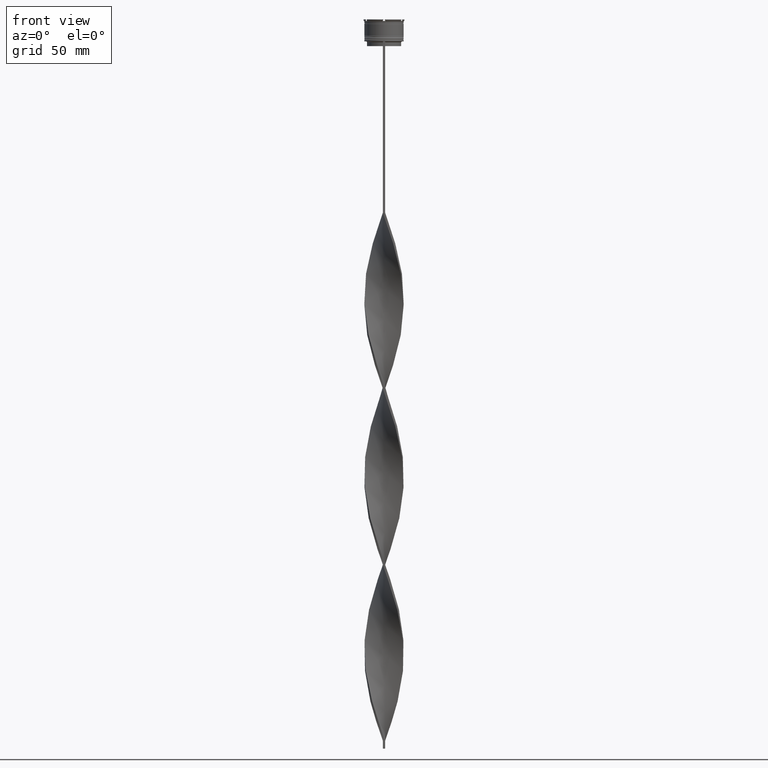
[diagram: clean part render]
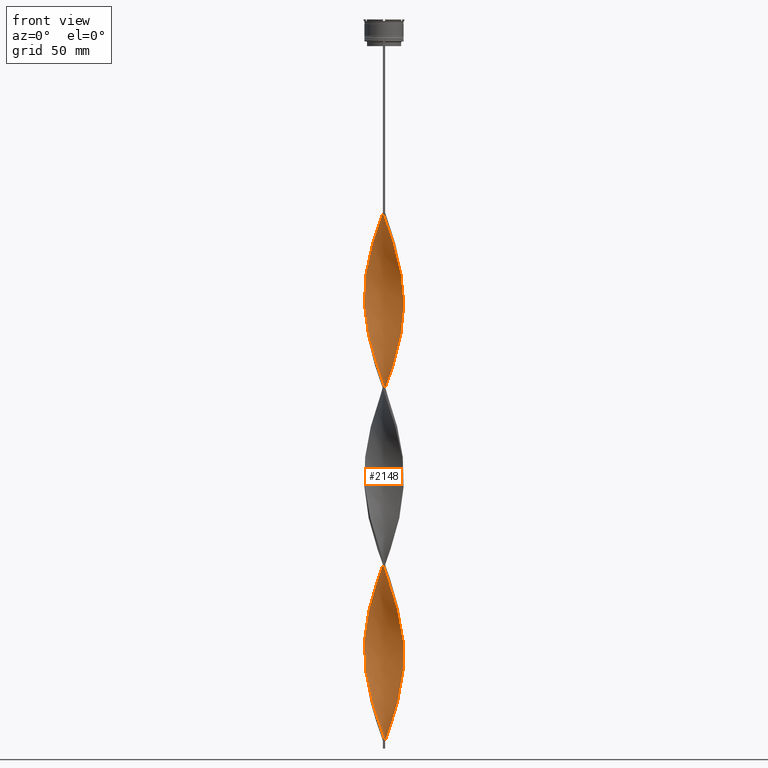
[diagram: same view with one face highlighted and labeled with its STEP entity id]
A machine part, front view. The second image highlights one B-rep face of the part: STEP entity #2148.
In plain terms, the highlighted face is a freeform B-spline surface patch.
Its self-contained STEP definition (entity closure, byte-faithful):
#1 = CARTESIAN_POINT ( 'NONE',  ( 8.112045323846697187, 9.581720387053803023, -436.0909090909090651 ) ) ;
#6 = CARTESIAN_POINT ( 'NONE',  ( -5.874911659039470102, -11.05883868218006505, -331.7272727272727479 ) ) ;
#20 = CARTESIAN_POINT ( 'NONE',  ( 5.083967906288923366, 11.47902065681780215, -446.2727272727271952 ) ) ;
#25 = CARTESIAN_POINT ( 'NONE',  ( -11.35936647350535722, 5.345974020927153347, -161.1818181818181870 ) ) ;
#38 = CARTESIAN_POINT ( 'NONE',  ( -12.26603189480669798, -2.521301559826762073, -408.0909090909091219 ) ) ;
#44 = CARTESIAN_POINT ( 'NONE',  ( 6.665855411790016838, 10.63865670754232440, -441.1818181818181301 ) ) ;
#51 = CARTESIAN_POINT ( 'NONE',  ( -12.44635894133090126, -1.644017644484961460, -181.5454545454545041 ) ) ;
#63 = CARTESIAN_POINT ( 'NONE',  ( -5.345974020927156900, -11.35936647350535367, -441.1818181818181301 ) ) ;
#71 = CARTESIAN_POINT ( 'NONE',  ( 11.35936647350535544, 5.345974020927153347, -420.8181818181818130 ) ) ;
#82 = CARTESIAN_POINT ( 'NONE',  ( -7.388950367818355680, 10.11018854729806726, -143.3636363636363740 ) ) ;
#106 = CARTESIAN_POINT ( 'NONE',  ( -11.78236275255014576, -4.241276690728743581, -189.1818181818181870 ) ) ;
#116 = CARTESIAN_POINT ( 'NONE',  ( 12.50000000000000000, -0.7500000000000005551, -179.0000000000000000 ) ) ;
#124 = CARTESIAN_POINT ( 'NONE',  ( -5.874911659039469214, 11.05883868218006505, -138.2727272727272805 ) ) ;
#132 = CARTESIAN_POINT ( 'NONE',  ( 11.68196120168289553, 4.510463666007690442, -418.2727272727273089 ) ) ;
#156 = CARTESIAN_POINT ( 'NONE',  ( -6.908166116216015062, -10.48293307345756631, -212.0909090909090935 ) ) ;
#166 = CARTESIAN_POINT ( 'NONE',  ( 3.674953311088235974, 12.00455592986042852, -334.2727272727272521 ) ) ;
#185 = CARTESIAN_POINT ( 'NONE',  ( -6.127070068571586425, -10.92114977348146354, -214.6363636363636260 ) ) ;
#189 = CARTESIAN_POINT ( 'NONE',  ( 8.329727870884727992, -9.393097386316817676, -150.9999999999999716 ) ) ;
#190 = CARTESIAN_POINT ( 'NONE',  ( 8.955724128969263731, 8.752571355081759208, -316.4545454545454390 ) ) ;
#209 = CARTESIAN_POINT ( 'NONE',  ( 0.7499999999999983347, -12.50000000000000000, -235.0000000000000000 ) ) ;
#212 = CARTESIAN_POINT ( 'NONE',  ( 5.083967906288923366, 11.47902065681780215, -222.2727272727272805 ) ) ;
#213 = CARTESIAN_POINT ( 'NONE',  ( -5.345974020927156900, -11.35936647350535367, -217.1818181818181586 ) ) ;
#230 = CARTESIAN_POINT ( 'NONE',  ( -9.393097386316817676, 8.329727870884727992, -150.9999999999999716 ) ) ;
#236 = CARTESIAN_POINT ( 'NONE',  ( 7.618946993550370195, -9.938015229887191992, -148.4545454545454390 ) ) ;
#237 = CARTESIAN_POINT ( 'NONE',  ( 8.752571355081755655, -8.955724128969267284, -260.4545454545454959 ) ) ;
#251 = CARTESIAN_POINT ( 'NONE',  ( -9.393097386316817676, 8.329727870884727992, -374.9999999999999432 ) ) ;
#253 = CARTESIAN_POINT ( 'NONE',  ( 6.127070068571584649, -10.92114977348146354, -143.3636363636363740 ) ) ;
#255 = CARTESIAN_POINT ( 'NONE',  ( 5.874911659039470990, -11.05883868218006505, -250.2727272727273089 ) ) ;
#270 = CARTESIAN_POINT ( 'NONE',  ( 9.581720387053806576, 8.112045323846695410, -313.9090909090908781 ) ) ;
#273 = CARTESIAN_POINT ( 'NONE',  ( -10.92114977348146532, -6.127070068571578432, -311.3636363636363740 ) ) ;
#274 = CARTESIAN_POINT ( 'NONE',  ( -12.47950415221662190, 1.036569397005364879, -397.9090909090909349 ) ) ;
#293 = CARTESIAN_POINT ( 'NONE',  ( 8.112045323846695410, -9.581720387053804799, -257.9090909090909349 ) ) ;
#298 = CARTESIAN_POINT ( 'NONE',  ( -9.938015229887190216, -7.618946993550371971, -316.4545454545454390 ) ) ;
#300 = CARTESIAN_POINT ( 'NONE',  ( -0.1440176444849642912, -12.55364105866909874, -456.4545454545454959 ) ) ;
#307 = CARTESIAN_POINT ( 'NONE',  ( -6.127070068571584649, 10.92114977348146354, -255.3636363636363455 ) ) ;
#316 = CARTESIAN_POINT ( 'NONE',  ( 11.35936647350535367, -5.345974020927156900, -273.1818181818181870 ) ) ;
#317 = CARTESIAN_POINT ( 'NONE',  ( 0.7500000000000013323, 12.50000000000000000, -459.0000000000000000 ) ) ;
#320 = CARTESIAN_POINT ( 'NONE',  ( 1.036569397005364879, -12.47950415221662190, -352.0909090909091219 ) ) ;
#321 = CARTESIAN_POINT ( 'NONE',  ( -10.63865670754232617, -6.665855411790015950, -420.8181818181818130 ) ) ;
#328 = CARTESIAN_POINT ( 'NONE',  ( -4.241276690728745358, -11.78236275255014576, -336.8181818181818130 ) ) ;
#334 = CARTESIAN_POINT ( 'NONE',  ( 2.521301559826761185, -12.26603189480669798, -240.0909090909090651 ) ) ;
#340 = CARTESIAN_POINT ( 'NONE',  ( -8.329727870884724439, 9.393097386316817676, -262.9999999999999432 ) ) ;
#344 = CARTESIAN_POINT ( 'NONE',  ( -10.63865670754232440, 6.665855411790017726, -273.1818181818181870 ) ) ;
#354 = CARTESIAN_POINT ( 'NONE',  ( -9.393097386316817676, -8.329727870884724439, -319.0000000000000000 ) ) ;
#362 = CARTESIAN_POINT ( 'NONE',  ( -12.20496158781229035, -2.802037230306993809, -301.1818181818182438 ) ) ;
#381 = CARTESIAN_POINT ( 'NONE',  ( -5.083967906288929584, -11.47902065681779682, -334.2727272727272521 ) ) ;
#401 = CARTESIAN_POINT ( 'NONE',  ( 5.083967906288923366, 11.47902065681780215, -446.2727272727271952 ) ) ;
#432 = CARTESIAN_POINT ( 'NONE',  ( 8.752571355081759208, 8.955724128969263731, -433.5454545454545610 ) ) ;
#452 = CARTESIAN_POINT ( 'NONE',  ( 12.47950415221662368, 1.036569397005363324, -408.0909090909091219 ) ) ;
#461 = CARTESIAN_POINT ( 'NONE',  ( -5.874911659039469214, 11.05883868218006505, -138.2727272727272805 ) ) ;
#472 = CARTESIAN_POINT ( 'NONE',  ( 12.26603189480669620, -2.521301559826762961, -173.9090909090909065 ) ) ;
#480 = CARTESIAN_POINT ( 'NONE',  ( 1.644017644484963681, 12.44635894133090126, -456.4545454545454390 ) ) ;
#487 = CARTESIAN_POINT ( 'NONE',  ( 11.47902065681779860, -5.083967906288926031, -390.2727272727272521 ) ) ;
#496 = FACE_OUTER_BOUND ( 'NONE', #3866, .T. ) ;
#502 = CARTESIAN_POINT ( 'NONE',  ( -1.644017644484962792, 12.44635894133090126, -125.5454545454545467 ) ) ;
#509 = CARTESIAN_POINT ( 'NONE',  ( 12.40536724576414862, 1.929121149525767409, -186.6363636363636260 ) ) ;
#510 = CARTESIAN_POINT ( 'NONE',  ( -8.112045323846697187, 9.581720387053804799, -145.9090909090909065 ) ) ;
#523 = CARTESIAN_POINT ( 'NONE',  ( 12.44635894133090126, -1.644017644484962792, -176.4545454545454390 ) ) ;
#529 = CARTESIAN_POINT ( 'NONE',  ( -8.329727870884727992, -9.393097386316815900, -207.0000000000000284 ) ) ;
#533 = CARTESIAN_POINT ( 'NONE',  ( 5.874911659039468326, 11.05883868218006505, -219.7272727272727195 ) ) ;
#535 = CARTESIAN_POINT ( 'NONE',  ( 12.00455592986042852, -3.674953311088235086, -278.2727272727271952 ) ) ;
#552 = CARTESIAN_POINT ( 'NONE',  ( -1.929121149525766521, -12.40536724576414862, -227.3636363636363455 ) ) ;
#557 = CARTESIAN_POINT ( 'NONE',  ( 12.47950415221662368, 1.036569397005363324, -184.0909090909090935 ) ) ;
#559 = CARTESIAN_POINT ( 'NONE',  ( 10.92114977348146532, -6.127070068571582873, -270.6363636363636829 ) ) ;
#575 = CARTESIAN_POINT ( 'NONE',  ( -6.665855411790014173, 10.63865670754232795, -140.8181818181818130 ) ) ;
#579 = CARTESIAN_POINT ( 'NONE',  ( -0.7499999999999997780, -12.50000000000000000, -123.0000000000000000 ) ) ;
#581 = CARTESIAN_POINT ( 'NONE',  ( 11.68196120168289553, -4.510463666007691330, -275.7272727272726911 ) ) ;
#598 = CARTESIAN_POINT ( 'NONE',  ( 11.05883868218006683, 5.874911659039464773, -306.2727272727272521 ) ) ;
#603 = CARTESIAN_POINT ( 'NONE',  ( 12.40536724576414684, -1.929121149525772516, -283.3636363636362603 ) ) ;
#616 = CARTESIAN_POINT ( 'NONE',  ( 12.20496158781229035, -2.802037230306998694, -280.8181818181818699 ) ) ;
#622 = CARTESIAN_POINT ( 'NONE',  ( -5.874911659039470102, -11.05883868218006505, -331.7272727272727479 ) ) ;
#624 = CARTESIAN_POINT ( 'NONE',  ( 6.127070068571582873, 10.92114977348146354, -326.6363636363636260 ) ) ;
#641 = CARTESIAN_POINT ( 'NONE',  ( 11.47902065681779860, 5.083967906288924254, -303.7272727272727479 ) ) ;
#644 = CARTESIAN_POINT ( 'NONE',  ( -0.1440176444849612103, 12.55364105866909874, -237.5454545454545325 ) ) ;
#645 = CARTESIAN_POINT ( 'NONE',  ( -4.510463666007690442, -11.68196120168289553, -443.7272727272727479 ) ) ;
#651 = CARTESIAN_POINT ( 'NONE',  ( -1.036569397005362436, 12.47950415221662368, -240.0909090909090651 ) ) ;
#663 = CARTESIAN_POINT ( 'NONE',  ( -12.20496158781229035, 2.802037230306999582, -392.8181818181818699 ) ) ;
#668 = CARTESIAN_POINT ( 'NONE',  ( 1.929121149525766521, -12.40536724576414862, -354.6363636363635692 ) ) ;
#670 = CARTESIAN_POINT ( 'NONE',  ( -9.581720387053804799, -8.112045323846698963, -425.9090909090908781 ) ) ;
#677 = CARTESIAN_POINT ( 'NONE',  ( 5.345974020927152459, -11.35936647350535722, -364.8181818181818130 ) ) ;
#685 = CARTESIAN_POINT ( 'NONE',  ( 9.393097386316817676, -8.329727870884727992, -262.9999999999999432 ) ) ;
#689 = CARTESIAN_POINT ( 'NONE',  ( -10.63865670754232440, 6.665855411790017726, -273.1818181818181870 ) ) ;
#690 = CARTESIAN_POINT ( 'NONE',  ( -8.752571355081757432, 8.955724128969265507, -372.4545454545454959 ) ) ;
#697 = CARTESIAN_POINT ( 'NONE',  ( -8.752571355081753879, -8.955724128969267284, -321.5454545454545610 ) ) ;
#707 = CARTESIAN_POINT ( 'NONE',  ( -10.11018854729806904, 7.388950367818353904, -270.6363636363636829 ) ) ;
#712 = CARTESIAN_POINT ( 'NONE',  ( 5.083967906288923366, 11.47902065681780215, -222.2727272727272805 ) ) ;
#720 = CARTESIAN_POINT ( 'NONE',  ( -3.674953311088228869, -12.00455592986043030, -446.2727272727271952 ) ) ;
#735 = CARTESIAN_POINT ( 'NONE',  ( -9.581720387053803023, 8.112045323846698963, -268.0909090909090082 ) ) ;
#758 = CARTESIAN_POINT ( 'NONE',  ( 10.11018854729806549, -7.388950367818356568, -382.6363636363636829 ) ) ;
#784 = CARTESIAN_POINT ( 'NONE',  ( 9.581720387053804799, -8.112045323846698963, -380.0909090909090651 ) ) ;
#793 = CARTESIAN_POINT ( 'NONE',  ( -8.955724128969265507, -8.752571355081755655, -428.4545454545454959 ) ) ;
#809 = CARTESIAN_POINT ( 'NONE',  ( -1.644017644484962792, 12.44635894133090126, -125.5454545454545467 ) ) ;
#829 = CARTESIAN_POINT ( 'NONE',  ( 4.241276690728743581, 11.78236275255014576, -448.8181818181818130 ) ) ;
#837 = CARTESIAN_POINT ( 'NONE',  ( 12.00455592986043030, 3.674953311088229757, -415.7272727272726911 ) ) ;
#848 = CARTESIAN_POINT ( 'NONE',  ( 12.55364105866909874, 0.1440176444849620985, -181.5454545454545041 ) ) ;
#854 = CARTESIAN_POINT ( 'NONE',  ( -10.11018854729806549, -7.388950367818355680, -199.3636363636363455 ) ) ;
#863 = CARTESIAN_POINT ( 'NONE',  ( 2.521301559826763850, 12.26603189480669620, -453.9090909090909349 ) ) ;
#879 = CARTESIAN_POINT ( 'NONE',  ( -7.388950367818355680, 10.11018854729806726, -143.3636363636363740 ) ) ;
#886 = CARTESIAN_POINT ( 'NONE',  ( 12.44635894133090126, -1.644017644484962792, -176.4545454545454390 ) ) ;
#887 = CARTESIAN_POINT ( 'NONE',  ( 12.47950415221662368, -1.036569397005365989, -285.9090909090908781 ) ) ;
#905 = CARTESIAN_POINT ( 'NONE',  ( -3.674953311088228869, -12.00455592986043030, -222.2727272727272805 ) ) ;
#912 = CARTESIAN_POINT ( 'NONE',  ( -8.329727870884727992, -9.393097386316815900, -207.0000000000000284 ) ) ;
#918 = EDGE_CURVE ( 'NONE', #2816, #1097, #3297, .T. ) ;
#927 = CARTESIAN_POINT ( 'NONE',  ( -2.521301559826763405, 12.26603189480669620, -128.0909090909090935 ) ) ;
#933 = CARTESIAN_POINT ( 'NONE',  ( 1.036569397005367099, 12.47950415221662368, -341.9090909090909349 ) ) ;
#934 = CARTESIAN_POINT ( 'NONE',  ( -0.7499999999999997780, 12.50000000000000000, -123.0000000000000000 ) ) ;
#945 = CARTESIAN_POINT ( 'NONE',  ( -12.44635894133090126, -1.644017644484961460, -181.5454545454545041 ) ) ;
#948 = CARTESIAN_POINT ( 'NONE',  ( 12.20496158781229035, 2.802037230306998694, -189.1818181818181870 ) ) ;
#949 = CARTESIAN_POINT ( 'NONE',  ( 2.521301559826761185, -12.26603189480669798, -240.0909090909090651 ) ) ;
#967 = CARTESIAN_POINT ( 'NONE',  ( 9.938015229887190216, -7.618946993550371971, -265.5454545454545041 ) ) ;
#973 = CARTESIAN_POINT ( 'NONE',  ( -12.26603189480669442, 2.521301559826764738, -285.9090909090908781 ) ) ;
#974 = CARTESIAN_POINT ( 'NONE',  ( 12.20496158781229035, -2.802037230306998694, -280.8181818181818699 ) ) ;
#989 = CARTESIAN_POINT ( 'NONE',  ( -5.874911659039469214, 11.05883868218006505, -362.2727272727273089 ) ) ;
#994 = CARTESIAN_POINT ( 'NONE',  ( -6.127070068571584649, 10.92114977348146354, -255.3636363636363455 ) ) ;
#996 = CARTESIAN_POINT ( 'NONE',  ( -1.929121149525766521, -12.40536724576414862, -451.3636363636364877 ) ) ;
#1003 = CARTESIAN_POINT ( 'NONE',  ( -3.398585475168570458, -12.08570484828248581, -339.3636363636362603 ) ) ;
#1008 = CARTESIAN_POINT ( 'NONE',  ( 10.92114977348146532, -6.127070068571582873, -270.6363636363636829 ) ) ;
#1012 = CARTESIAN_POINT ( 'NONE',  ( -2.521301559826765626, -12.26603189480669442, -341.9090909090909349 ) ) ;
#1013 = CARTESIAN_POINT ( 'NONE',  ( -9.938015229887191992, 7.618946993550370195, -377.5454545454545610 ) ) ;
#1021 = CARTESIAN_POINT ( 'NONE',  ( 4.510463666007691330, -11.68196120168289553, -362.2727272727273089 ) ) ;
#1030 = CARTESIAN_POINT ( 'NONE',  ( 2.802037230306999582, 12.20496158781229035, -336.8181818181818130 ) ) ;
#1036 = CARTESIAN_POINT ( 'NONE',  ( 2.521301559826763850, 12.26603189480669620, -229.9090909090909065 ) ) ;
#1038 = CARTESIAN_POINT ( 'NONE',  ( -3.674953311088228869, -12.00455592986043030, -446.2727272727271952 ) ) ;
#1045 = CARTESIAN_POINT ( 'NONE',  ( -9.393097386316817676, -8.329727870884724439, -319.0000000000000000 ) ) ;
#1051 = CARTESIAN_POINT ( 'NONE',  ( -10.92114977348146354, 6.127070068571585537, -382.6363636363636829 ) ) ;
#1055 = CARTESIAN_POINT ( 'NONE',  ( 1.644017644484963681, 12.44635894133090126, -232.4545454545454390 ) ) ;
#1062 = CARTESIAN_POINT ( 'NONE',  ( 0.7500000000000013323, 12.50000000000000000, -235.0000000000000000 ) ) ;
#1070 = CARTESIAN_POINT ( 'NONE',  ( -11.47902065681779860, -5.083967906288924254, -415.7272727272726911 ) ) ;
#1075 = CARTESIAN_POINT ( 'NONE',  ( 3.398585475168563796, 12.08570484828248759, -451.3636363636364308 ) ) ;
#1082 = CARTESIAN_POINT ( 'NONE',  ( -12.50000000000000000, 0.7500000000000021094, -291.0000000000000568 ) ) ;
#1097 = VERTEX_POINT ( 'NONE', #2951 ) ;
#1100 = CARTESIAN_POINT ( 'NONE',  ( 10.92114977348146354, 6.127070068571584649, -423.3636363636363740 ) ) ;
#1108 = CARTESIAN_POINT ( 'NONE',  ( -6.665855411790015062, 10.63865670754232795, -140.8181818181818130 ) ) ;
#1120 = CARTESIAN_POINT ( 'NONE',  ( -10.11018854729806549, -7.388950367818355680, -423.3636363636363740 ) ) ;
#1135 = CARTESIAN_POINT ( 'NONE',  ( 5.874911659039468326, 11.05883868218006505, -443.7272727272727479 ) ) ;
#1152 = CARTESIAN_POINT ( 'NONE',  ( 5.874911659039468326, 11.05883868218006505, -443.7272727272727479 ) ) ;
#1161 = CARTESIAN_POINT ( 'NONE',  ( -12.47950415221662190, 1.036569397005364879, -173.9090909090909065 ) ) ;
#1188 = CARTESIAN_POINT ( 'NONE',  ( 11.35936647350535544, 5.345974020927153347, -420.8181818181818130 ) ) ;
#1203 = CARTESIAN_POINT ( 'NONE',  ( 12.40536724576414862, 1.929121149525767409, -186.6363636363636260 ) ) ;
#1219 = CARTESIAN_POINT ( 'NONE',  ( -3.398585475168563352, 12.08570484828248759, -130.6363636363636545 ) ) ;
#1232 = CARTESIAN_POINT ( 'NONE',  ( 10.48293307345756986, 6.908166116216014174, -201.9090909090908781 ) ) ;
#1239 = CARTESIAN_POINT ( 'NONE',  ( -10.92114977348146354, 6.127070068571585537, -158.6363636363636260 ) ) ;
#1244 = CARTESIAN_POINT ( 'NONE',  ( 10.48293307345756809, 6.908166116216014174, -201.9090909090909065 ) ) ;
#1245 = CARTESIAN_POINT ( 'NONE',  ( -1.644017644484962792, 12.44635894133090126, -349.5454545454545610 ) ) ;
#1254 = CARTESIAN_POINT ( 'NONE',  ( 10.92114977348146354, 6.127070068571584649, -199.3636363636363455 ) ) ;
#1262 = CARTESIAN_POINT ( 'NONE',  ( -11.68196120168289553, 4.510463666007692218, -163.7272727272727195 ) ) ;
#1269 = CARTESIAN_POINT ( 'NONE',  ( 9.938015229887190216, -7.618946993550371971, -265.5454545454545041 ) ) ;
#1291 = CARTESIAN_POINT ( 'NONE',  ( 3.398585475168563796, 12.08570484828248759, -227.3636363636363455 ) ) ;
#1292 = CARTESIAN_POINT ( 'NONE',  ( -10.63865670754232617, -6.665855411790015950, -196.8181818181817846 ) ) ;
#1306 = CARTESIAN_POINT ( 'NONE',  ( -12.55364105866909874, 0.1440176444849634030, -176.4545454545454390 ) ) ;
#1310 = CARTESIAN_POINT ( 'NONE',  ( 1.036569397005364879, -12.47950415221662190, -128.0909090909090935 ) ) ;
#1311 = CARTESIAN_POINT ( 'NONE',  ( -6.127070068571586425, -10.92114977348146354, -214.6363636363636260 ) ) ;
#1325 = CARTESIAN_POINT ( 'NONE',  ( 6.665855411790015062, -10.63865670754232795, -252.8181818181817846 ) ) ;
#1328 = CARTESIAN_POINT ( 'NONE',  ( 2.802037230306998694, -12.20496158781229035, -357.1818181818181301 ) ) ;
#1329 = CARTESIAN_POINT ( 'NONE',  ( 12.08570484828248759, 3.398585475168565129, -298.6363636363635692 ) ) ;
#1337 = CARTESIAN_POINT ( 'NONE',  ( 9.581720387053804799, -8.112045323846698963, -156.0909090909090935 ) ) ;
#1348 = CARTESIAN_POINT ( 'NONE',  ( 12.26603189480669798, 2.521301559826760297, -296.0909090909090651 ) ) ;
#1353 = CARTESIAN_POINT ( 'NONE',  ( -12.47950415221662368, -1.036569397005361548, -296.0909090909090651 ) ) ;
#1354 = CARTESIAN_POINT ( 'NONE',  ( -5.083967906288924254, 11.47902065681779860, -359.7272727272726343 ) ) ;
#1361 = CARTESIAN_POINT ( 'NONE',  ( 1.929121149525766521, -12.40536724576414862, -354.6363636363635692 ) ) ;
#1369 = CARTESIAN_POINT ( 'NONE',  ( -4.241276690728743581, 11.78236275255014576, -357.1818181818181301 ) ) ;
#1377 = CARTESIAN_POINT ( 'NONE',  ( -8.752571355081753879, -8.955724128969267284, -321.5454545454545610 ) ) ;
#1378 = CARTESIAN_POINT ( 'NONE',  ( -1.036569397005365323, -12.47950415221662190, -453.9090909090909349 ) ) ;
#1382 = VERTEX_POINT ( 'NONE', #934 ) ;
#1384 = CARTESIAN_POINT ( 'NONE',  ( 3.674953311088230645, -12.00455592986043030, -359.7272727272726343 ) ) ;
#1392 = CARTESIAN_POINT ( 'NONE',  ( 8.752571355081755655, -8.955724128969267284, -260.4545454545454959 ) ) ;
#1398 = CARTESIAN_POINT ( 'NONE',  ( -4.510463666007693107, 11.68196120168289553, -250.2727272727273089 ) ) ;
#1399 = CARTESIAN_POINT ( 'NONE',  ( -6.127070068571586425, -10.92114977348146354, -438.6363636363636829 ) ) ;
#1406 = CARTESIAN_POINT ( 'NONE',  ( -12.44635894133090126, 1.644017644484958796, -288.4545454545454390 ) ) ;
#1413 = CARTESIAN_POINT ( 'NONE',  ( -1.644017644484962792, 12.44635894133090126, -349.5454545454545610 ) ) ;
#1418 = CARTESIAN_POINT ( 'NONE',  ( -1.036569397005362436, 12.47950415221662368, -240.0909090909090651 ) ) ;
#1426 = CARTESIAN_POINT ( 'NONE',  ( -7.618946993550368418, 9.938015229887193769, -260.4545454545454959 ) ) ;
#1446 = CARTESIAN_POINT ( 'NONE',  ( 4.241276690728743581, 11.78236275255014576, -224.8181818181818130 ) ) ;
#1459 = CARTESIAN_POINT ( 'NONE',  ( 0.7500000000000013323, 12.50000000000000000, -459.0000000000000000 ) ) ;
#1465 = CARTESIAN_POINT ( 'NONE',  ( -11.68196120168289553, 4.510463666007692218, -163.7272727272727195 ) ) ;
#1494 = CARTESIAN_POINT ( 'NONE',  ( -12.50000000000000000, -0.7499999999999990008, -179.0000000000000000 ) ) ;
#1504 = CARTESIAN_POINT ( 'NONE',  ( -2.802037230306998694, -12.20496158781229035, -448.8181818181818130 ) ) ;
#1514 = CARTESIAN_POINT ( 'NONE',  ( 9.393097386316817676, 8.329727870884726215, -430.9999999999999432 ) ) ;
#1521 = CARTESIAN_POINT ( 'NONE',  ( 7.388950367818358345, 10.11018854729806549, -438.6363636363636829 ) ) ;
#1545 = CARTESIAN_POINT ( 'NONE',  ( 12.50000000000000000, -0.7500000000000005551, -403.0000000000000000 ) ) ;
#1556 = CARTESIAN_POINT ( 'NONE',  ( 12.47950415221662368, 1.036569397005363324, -184.0909090909090935 ) ) ;
#1572 = CARTESIAN_POINT ( 'NONE',  ( 1.644017644484963681, 12.44635894133090126, -456.4545454545454959 ) ) ;
#1596 = CARTESIAN_POINT ( 'NONE',  ( -9.581720387053804799, -8.112045323846698963, -201.9090909090908781 ) ) ;
#1617 = CARTESIAN_POINT ( 'NONE',  ( -5.345974020927156900, -11.35936647350535367, -217.1818181818181586 ) ) ;
#1621 = CARTESIAN_POINT ( 'NONE',  ( 12.08570484828248759, -3.398585475168562908, -171.3636363636363171 ) ) ;
#1622 = CARTESIAN_POINT ( 'NONE',  ( 9.393097386316817676, -8.329727870884727992, -262.9999999999999432 ) ) ;
#1642 = CARTESIAN_POINT ( 'NONE',  ( 6.665855411790016838, 10.63865670754232440, -217.1818181818181586 ) ) ;
#1644 = CARTESIAN_POINT ( 'NONE',  ( 4.510463666007692218, 11.68196120168289553, -331.7272727272727479 ) ) ;
#1662 = CARTESIAN_POINT ( 'NONE',  ( -12.00455592986043030, 3.674953311088231533, -166.2727272727272521 ) ) ;
#1667 = CARTESIAN_POINT ( 'NONE',  ( 10.63865670754232795, -6.665855411790015062, -161.1818181818181870 ) ) ;
#1669 = CARTESIAN_POINT ( 'NONE',  ( -4.241276690728743581, 11.78236275255014576, -357.1818181818181301 ) ) ;
#1686 = CARTESIAN_POINT ( 'NONE',  ( -11.35936647350535722, 5.345974020927153347, -385.1818181818181301 ) ) ;
#1688 = CARTESIAN_POINT ( 'NONE',  ( 8.112045323846697187, 9.581720387053803023, -212.0909090909090935 ) ) ;
#1689 = CARTESIAN_POINT ( 'NONE',  ( -1.036569397005365323, -12.47950415221662190, -229.9090909090909065 ) ) ;
#1706 = CARTESIAN_POINT ( 'NONE',  ( 12.08570484828248759, 3.398585475168565573, -298.6363636363635692 ) ) ;
#1709 = CARTESIAN_POINT ( 'NONE',  ( -9.581720387053803023, 8.112045323846697187, -268.0909090909090651 ) ) ;
#1710 = CARTESIAN_POINT ( 'NONE',  ( -8.955724128969265507, -8.752571355081755655, -428.4545454545454959 ) ) ;
#1717 = CARTESIAN_POINT ( 'NONE',  ( 4.510463666007691330, -11.68196120168289553, -138.2727272727272805 ) ) ;
#1720 = EDGE_CURVE ( 'NONE', #4511, #2816, #4297, .T. ) ;
#1729 = CARTESIAN_POINT ( 'NONE',  ( -3.398585475168563796, 12.08570484828248759, -354.6363636363635692 ) ) ;
#1735 = CARTESIAN_POINT ( 'NONE',  ( -12.55364105866909874, -0.1440176444849660120, -293.5454545454545041 ) ) ;
#1736 = CARTESIAN_POINT ( 'NONE',  ( -12.55364105866909874, 0.1440176444849634030, -400.4545454545453822 ) ) ;
#1743 = CARTESIAN_POINT ( 'NONE',  ( 3.398585475168563352, 12.08570484828248759, -227.3636363636363171 ) ) ;
#1749 = CARTESIAN_POINT ( 'NONE',  ( 8.329727870884727992, 9.393097386316814124, -319.0000000000000000 ) ) ;
#1756 = CARTESIAN_POINT ( 'NONE',  ( -8.955724128969263731, 8.752571355081759208, -265.5454545454545041 ) ) ;
#1757 = CARTESIAN_POINT ( 'NONE',  ( 0.7499999999999983347, -12.50000000000000000, -459.0000000000000000 ) ) ;
#1763 = CARTESIAN_POINT ( 'NONE',  ( 6.908166116216012398, -10.48293307345756986, -369.9090909090908781 ) ) ;
#1769 = CARTESIAN_POINT ( 'NONE',  ( -5.083967906288924254, 11.47902065681779860, -359.7272727272726911 ) ) ;
#1774 = CARTESIAN_POINT ( 'NONE',  ( 9.581720387053804799, -8.112045323846697187, -380.0909090909090651 ) ) ;
#1781 = CARTESIAN_POINT ( 'NONE',  ( 1.644017644484963681, 12.44635894133090126, -232.4545454545454390 ) ) ;
#1794 = CARTESIAN_POINT ( 'NONE',  ( -12.08570484828248581, 3.398585475168570014, -283.3636363636363171 ) ) ;
#1804 = CARTESIAN_POINT ( 'NONE',  ( 7.388950367818358345, 10.11018854729806549, -214.6363636363636260 ) ) ;
#1821 = CARTESIAN_POINT ( 'NONE',  ( -2.521301559826765626, -12.26603189480669442, -341.9090909090909349 ) ) ;
#1831 = CARTESIAN_POINT ( 'NONE',  ( -10.63865670754232617, -6.665855411790015062, -420.8181818181818130 ) ) ;
#1842 = CARTESIAN_POINT ( 'NONE',  ( -9.393097386316817676, 8.329727870884727992, -150.9999999999999432 ) ) ;
#1861 = CARTESIAN_POINT ( 'NONE',  ( 12.50000000000000000, -0.7500000000000005551, -403.0000000000000000 ) ) ;
#1871 = CARTESIAN_POINT ( 'NONE',  ( 12.08570484828248759, -3.398585475168562464, -395.3636363636362603 ) ) ;
#1900 = CARTESIAN_POINT ( 'NONE',  ( 10.63865670754232795, -6.665855411790015950, -385.1818181818180733 ) ) ;
#1907 = EDGE_CURVE ( 'NONE', #1382, #1097, #4630, .T. ) ;
#1912 = CARTESIAN_POINT ( 'NONE',  ( 2.802037230306998694, -12.20496158781229035, -133.1818181818181870 ) ) ;
#1918 = CARTESIAN_POINT ( 'NONE',  ( -12.26603189480669798, -2.521301559826762073, -184.0909090909090935 ) ) ;
#1928 = CARTESIAN_POINT ( 'NONE',  ( 11.78236275255014576, -4.241276690728745358, -392.8181818181818699 ) ) ;
#1939 = CARTESIAN_POINT ( 'NONE',  ( 12.20496158781229035, 2.802037230306998694, -189.1818181818181870 ) ) ;
#1949 = CARTESIAN_POINT ( 'NONE',  ( -7.618946993550371971, -9.938015229887190216, -209.5454545454545325 ) ) ;
#1956 = CARTESIAN_POINT ( 'NONE',  ( 8.955724128969265507, -8.752571355081757432, -153.5454545454545325 ) ) ;
#1958 = CARTESIAN_POINT ( 'NONE',  ( -10.92114977348146354, 6.127070068571585537, -158.6363636363636260 ) ) ;
#1972 = CARTESIAN_POINT ( 'NONE',  ( 6.908166116216012398, -10.48293307345756986, -145.9090909090909065 ) ) ;
#1986 = CARTESIAN_POINT ( 'NONE',  ( 9.581720387053806576, 8.112045323846697187, -313.9090909090908212 ) ) ;
#1995 = CARTESIAN_POINT ( 'NONE',  ( 1.036569397005364879, -12.47950415221662190, -128.0909090909090935 ) ) ;
#2001 = CARTESIAN_POINT ( 'NONE',  ( -1.036569397005365323, -12.47950415221662190, -229.9090909090909065 ) ) ;
#2004 = CARTESIAN_POINT ( 'NONE',  ( 8.752571355081759208, 8.955724128969263731, -209.5454545454545325 ) ) ;
#2005 = CARTESIAN_POINT ( 'NONE',  ( 12.44635894133090126, 1.644017644484965457, -293.5454545454544473 ) ) ;
#2022 = CARTESIAN_POINT ( 'NONE',  ( -4.241276690728743581, 11.78236275255014576, -133.1818181818181870 ) ) ;
#2027 = CARTESIAN_POINT ( 'NONE',  ( 0.1440176444849632920, -12.55364105866909874, -125.5454545454545467 ) ) ;
#2029 = CARTESIAN_POINT ( 'NONE',  ( -2.521301559826763405, 12.26603189480669620, -352.0909090909091219 ) ) ;
#2045 = CARTESIAN_POINT ( 'NONE',  ( 5.345974020927156900, 11.35936647350535367, -329.1818181818181301 ) ) ;
#2049 = CARTESIAN_POINT ( 'NONE',  ( 12.00455592986043030, 3.674953311088229757, -191.7272727272727479 ) ) ;
#2051 = CARTESIAN_POINT ( 'NONE',  ( 6.665855411790015950, -10.63865670754232795, -252.8181818181817562 ) ) ;
#2066 = CARTESIAN_POINT ( 'NONE',  ( 12.50000000000000000, 0.7499999999999975575, -291.0000000000000568 ) ) ;
#2069 = CARTESIAN_POINT ( 'NONE',  ( -11.05883868218006505, 5.874911659039469214, -275.7272727272726911 ) ) ;
#2070 = CARTESIAN_POINT ( 'NONE',  ( -8.112045323846697187, 9.581720387053804799, -369.9090909090908781 ) ) ;
#2078 = CARTESIAN_POINT ( 'NONE',  ( 0.7500000000000003331, 4.166666666666667851, -459.0000000000000000 ) ) ;
#2086 = CARTESIAN_POINT ( 'NONE',  ( -12.40536724576414862, 1.929121149525765411, -395.3636363636363171 ) ) ;
#2089 = CARTESIAN_POINT ( 'NONE',  ( -12.44635894133090126, 1.644017644484958796, -288.4545454545454390 ) ) ;
#2090 = CARTESIAN_POINT ( 'NONE',  ( -8.329727870884727992, -9.393097386316815900, -430.9999999999999432 ) ) ;
#2098 = CARTESIAN_POINT ( 'NONE',  ( -11.35936647350535722, -5.345974020927152459, -308.8181818181817562 ) ) ;
#2100 = CARTESIAN_POINT ( 'NONE',  ( 0.7500000000000013323, 12.50000000000000000, -459.0000000000000000 ) ) ;
#2111 = CARTESIAN_POINT ( 'NONE',  ( -2.521301559826763405, 12.26603189480669620, -352.0909090909091219 ) ) ;
#2117 = CARTESIAN_POINT ( 'NONE',  ( 4.510463666007691330, -11.68196120168289553, -362.2727272727273089 ) ) ;
#2118 = CARTESIAN_POINT ( 'NONE',  ( -12.50000000000000000, -0.7499999999999990008, -403.0000000000000000 ) ) ;
#2124 = CARTESIAN_POINT ( 'NONE',  ( 6.127070068571584649, -10.92114977348146354, -367.3636363636363740 ) ) ;
#2130 = CARTESIAN_POINT ( 'NONE',  ( 8.955724128969263731, 8.752571355081759208, -316.4545454545454390 ) ) ;
#2136 = CARTESIAN_POINT ( 'NONE',  ( -4.241276690728745358, -11.78236275255014576, -336.8181818181818130 ) ) ;
#2137 = CARTESIAN_POINT ( 'NONE',  ( -11.35936647350535722, 5.345974020927153347, -385.1818181818180733 ) ) ;
#2142 = CARTESIAN_POINT ( 'NONE',  ( -11.05883868218006505, 5.874911659039469214, -275.7272727272726911 ) ) ;
#2148 = ADVANCED_FACE ( 'NONE', ( #496 ), #2568, .T. ) ;
#2151 = CARTESIAN_POINT ( 'NONE',  ( 7.618946993550370195, -9.938015229887191992, -372.4545454545454959 ) ) ;
#2157 = CARTESIAN_POINT ( 'NONE',  ( 2.521301559826763850, 12.26603189480669620, -229.9090909090909065 ) ) ;
#2182 = CARTESIAN_POINT ( 'NONE',  ( -11.78236275255014576, 4.241276690728744470, -280.8181818181818699 ) ) ;
#2195 = CARTESIAN_POINT ( 'NONE',  ( 12.26603189480669620, -2.521301559826762961, -397.9090909090909349 ) ) ;
#2203 = CARTESIAN_POINT ( 'NONE',  ( -12.20496158781229035, 2.802037230306999582, -168.8181818181818130 ) ) ;
#2229 = CARTESIAN_POINT ( 'NONE',  ( 12.44635894133090126, -1.644017644484962792, -400.4545454545453822 ) ) ;
#2241 = CARTESIAN_POINT ( 'NONE',  ( -12.55364105866909874, 0.1440176444849634030, -400.4545454545453822 ) ) ;
#2257 = CARTESIAN_POINT ( 'NONE',  ( 11.05883868218006505, -5.874911659039470102, -387.7272727272727479 ) ) ;
#2267 = CARTESIAN_POINT ( 'NONE',  ( 11.05883868218006505, -5.874911659039470102, -163.7272727272727195 ) ) ;
#2274 = CARTESIAN_POINT ( 'NONE',  ( 9.938015229887191992, 7.618946993550368418, -428.4545454545454959 ) ) ;
#2281 = CARTESIAN_POINT ( 'NONE',  ( 8.955724128969265507, -8.752571355081757432, -377.5454545454545610 ) ) ;
#2298 = CARTESIAN_POINT ( 'NONE',  ( -11.35936647350535722, 5.345974020927153347, -161.1818181818181870 ) ) ;
#2308 = CARTESIAN_POINT ( 'NONE',  ( -5.083967906288924254, 11.47902065681779860, -135.7272727272726911 ) ) ;
#2328 = CARTESIAN_POINT ( 'NONE',  ( -8.752571355081757432, 8.955724128969265507, -148.4545454545454390 ) ) ;
#2336 = CARTESIAN_POINT ( 'NONE',  ( 12.26603189480669798, 2.521301559826760297, -296.0909090909090651 ) ) ;
#2357 = CARTESIAN_POINT ( 'NONE',  ( 6.908166116216012398, -10.48293307345756809, -145.9090909090909065 ) ) ;
#2359 = CARTESIAN_POINT ( 'NONE',  ( -6.908166116216015062, -10.48293307345756809, -212.0909090909090651 ) ) ;
#2376 = CARTESIAN_POINT ( 'NONE',  ( -3.398585475168563796, 12.08570484828248759, -130.6363636363636260 ) ) ;
#2380 = CARTESIAN_POINT ( 'NONE',  ( 1.929121149525766521, -12.40536724576414862, -130.6363636363636260 ) ) ;
#2381 = CARTESIAN_POINT ( 'NONE',  ( -3.398585475168563352, 12.08570484828248759, -354.6363636363635692 ) ) ;
#2396 = CARTESIAN_POINT ( 'NONE',  ( -12.08570484828248759, -3.398585475168564685, -186.6363636363636260 ) ) ;
#2400 = CARTESIAN_POINT ( 'NONE',  ( 4.241276690728740029, -11.78236275255014576, -245.1818181818181870 ) ) ;
#2416 = CARTESIAN_POINT ( 'NONE',  ( 5.083967906288926031, -11.47902065681779860, -247.7272727272727195 ) ) ;
#2420 = CARTESIAN_POINT ( 'NONE',  ( 8.329727870884727992, -9.393097386316817676, -374.9999999999999432 ) ) ;
#2422 = CARTESIAN_POINT ( 'NONE',  ( 10.63865670754232795, 6.665855411790015062, -308.8181818181817562 ) ) ;
#2437 = CARTESIAN_POINT ( 'NONE',  ( -8.752571355081757432, 8.955724128969265507, -372.4545454545454959 ) ) ;
#2442 = CARTESIAN_POINT ( 'NONE',  ( -7.618946993550368418, 9.938015229887193769, -260.4545454545454959 ) ) ;
#2443 = CARTESIAN_POINT ( 'NONE',  ( -11.47902065681779860, -5.083967906288924254, -415.7272727272726911 ) ) ;
#2450 = CARTESIAN_POINT ( 'NONE',  ( -12.08570484828248581, 3.398585475168569570, -283.3636363636362603 ) ) ;
#2458 = CARTESIAN_POINT ( 'NONE',  ( 3.674953311088235974, 12.00455592986042852, -334.2727272727272521 ) ) ;
#2462 = CARTESIAN_POINT ( 'NONE',  ( -10.48293307345756986, -6.908166116216012398, -313.9090909090908781 ) ) ;
#2463 = CARTESIAN_POINT ( 'NONE',  ( -6.665855411790015062, 10.63865670754232795, -364.8181818181818130 ) ) ;
#2471 = CARTESIAN_POINT ( 'NONE',  ( -5.345974020927153347, 11.35936647350535722, -252.8181818181817562 ) ) ;
#2481 = CARTESIAN_POINT ( 'NONE',  ( 1.929121149525773404, 12.40536724576414684, -339.3636363636363171 ) ) ;
#2486 = CARTESIAN_POINT ( 'NONE',  ( 0.7500000000000013323, 12.50000000000000000, -235.0000000000000000 ) ) ;
#2487 = CARTESIAN_POINT ( 'NONE',  ( -12.40536724576414862, 1.929121149525765411, -395.3636363636362603 ) ) ;
#2493 = CARTESIAN_POINT ( 'NONE',  ( -4.510463666007693107, 11.68196120168289553, -250.2727272727273089 ) ) ;
#2500 = CARTESIAN_POINT ( 'NONE',  ( 12.40536724576414684, -1.929121149525772516, -283.3636363636363171 ) ) ;
#2505 = CARTESIAN_POINT ( 'NONE',  ( -11.78236275255014576, 4.241276690728744470, -280.8181818181818699 ) ) ;
#2510 = CARTESIAN_POINT ( 'NONE',  ( -2.802037230306994697, 12.20496158781229035, -245.1818181818181870 ) ) ;
#2515 = CARTESIAN_POINT ( 'NONE',  ( -11.05883868218006505, -5.874911659039468326, -418.2727272727273089 ) ) ;
#2527 = CARTESIAN_POINT ( 'NONE',  ( -8.112045323846700740, -9.581720387053801247, -324.0909090909090082 ) ) ;
#2538 = VECTOR ( 'NONE', #3490, 1000.000000000000000 ) ;
#2553 = CARTESIAN_POINT ( 'NONE',  ( -8.752571355081757432, 8.955724128969265507, -148.4545454545454390 ) ) ;
#2563 = CARTESIAN_POINT ( 'NONE',  ( -1.929121149525766521, -12.40536724576414862, -451.3636363636364308 ) ) ;
#2568 =( BOUNDED_SURFACE ( )  B_SPLINE_SURFACE ( 1, 2, ( 
 ( #4465, #4546, #1995, #3844, #1912, #4414, #1717, #3419, #3735, #1972, #3151, #4060, #4573, #1337, #3040, #3017, #2267, #2613, #3685, #4033, #472, #523, #116, #848, #1556, #1203, #1939, #2644, #3362, #4443, #1254, #1232, #2668, #2691, #3208, #3559, #1804, #3230, #3193, #712, #1446, #1743, #2157, #1781, #1062, #3913, #651, #3930, #2510, #4636, #2493, #2471, #307, #4301, #1426, #3890, #2799, #735, #4617, #344, #2142, #4222, #2182, #2450, #4265, #1406, #1082, #3248, #3542, #2858, #362, #3576, #2876, #2098, #3173, #3600, #4281, #1045, #697, #2527, #2818, #3950, #6, #381, #328, #1003, #1821, #3868, #3521, #4595, #2839, #1361, #4244, #1384, #1021, #677, #2124, #1763, #3725, #2950, #2281, #784, #758, #1900, #2257, #487, #1928, #1871, #3619, #2229, #1545, #3672, #3702, #3269, #4049, #837, #132, #1188, #2893, #4398, #3641, #3348, #432, #2631, #1521, #3300, #1135, #401, #4019, #3003, #863, #1572, #4431 ),
 ( #4076, #809, #4349, #1219, #2658, #2308, #461, #1108, #82, #510, #2553, #1842, #4321, #4374, #1958, #25, #1465, #3973, #2203, #2580, #1161, #2602, #1494, #51, #2925, #3324, #106, #2972, #3995, #1292, #4519, #1596, #3101, #912, #4169, #2359, #1311, #213, #3775, #4477, #3753, #2729, #1689, #4192, #3475, #2747, #949, #4540, #2400, #4128, #255, #2051, #3056, #3456, #237, #1622, #1269, #2709, #559, #3817, #581, #535, #974, #603, #887, #3407, #3121, #2005, #2336, #1329, #3430, #4149, #2765, #2422, #2681, #1986, #190, #4100, #3838, #3080, #624, #3379, #1644, #166, #3795, #3030, #933, #4501, #4456, #1245, #2029, #2381, #1669, #1354, #4257, #2463, #3860, #2070, #690, #3167, #1013, #3882, #3495, #2137, #3144, #2812, #4588, #2487, #274, #1736, #2118, #2828, #4611, #3907, #2793, #2443, #3554, #321, #4237, #670, #1710, #2090, #4565, #4215, #1399, #3535, #645, #1038, #3515, #996, #1378, #300, #1757 ) ),
 .UNSPECIFIED., .F., .F., .F. ) 
 B_SPLINE_SURFACE_WITH_KNOTS ( ( 2, 2 ),
 ( 3, 2, 2, 2, 2, 2, 2, 2, 2, 2, 2, 2, 2, 2, 2, 2, 2, 2, 2, 2, 2, 2, 2, 2, 2, 2, 2, 2, 2, 2, 2, 2, 2, 2, 2, 2, 2, 2, 2, 2, 2, 2, 2, 2, 2, 2, 2, 2, 2, 2, 2, 2, 2, 2, 2, 2, 2, 2, 2, 2, 2, 2, 2, 2, 2, 2, 3 ),
 ( 0.000000000000000000, 1.000000000000000000 ),
 ( 0.000000000000000000, 0.01136363636363636395, 0.02272727272727272790, 0.03409090909090908839, 0.04545454545454545581, 0.05681818181818181629, 0.06818181818181817677, 0.07954545454545454419, 0.09090909090909091161, 0.1022727272727272790, 0.1136363636363636326, 0.1250000000000000000, 0.1363636363636363535, 0.1477272727272727348, 0.1590909090909090884, 0.1704545454545454419, 0.1818181818181818232, 0.1931818181818181768, 0.2045454545454545581, 0.2159090909090909116, 0.2272727272727272652, 0.2386363636363636465, 0.2500000000000000000, 0.2613636363636363535, 0.2727272727272727071, 0.2840909090909091161, 0.2954545454545454697, 0.3068181818181818232, 0.3181818181818181768, 0.3295454545454545303, 0.3409090909090908839, 0.3522727272727272929, 0.3636363636363636465, 0.3750000000000000000, 0.3863636363636363535, 0.3977272727272727071, 0.4090909090909091161, 0.4204545454545454697, 0.4318181818181818232, 0.4431818181818181768, 0.4545454545454545303, 0.4659090909090908839, 0.4772727272727272929, 0.4886363636363636465, 0.5000000000000000000, 0.5113636363636363535, 0.5227272727272727071, 0.5340909090909090606, 0.5454545454545454142, 0.5568181818181817677, 0.5681818181818182323, 0.5795454545454545858, 0.5909090909090909394, 0.6022727272727272929, 0.6136363636363636465, 0.6250000000000000000, 0.6363636363636363535, 0.6477272727272727071, 0.6590909090909090606, 0.6704545454545454142, 0.6818181818181817677, 0.6931818181818182323, 0.7045454545454545858, 0.7159090909090909394, 0.7272727272727272929, 0.7386363636363636465, 0.7500000000000000000 ),
 .UNSPECIFIED. ) 
 GEOMETRIC_REPRESENTATION_ITEM ( )  RATIONAL_B_SPLINE_SURFACE ( (
 ( 1.000000000000000000, 0.9974521146102535152, 1.000000000000000000, 0.9974521146102535152, 1.000000000000000000, 0.9974521146102535152, 1.000000000000000000, 0.9974521146102535152, 1.000000000000000000, 0.9974521146102535152, 1.000000000000000000, 0.9974521146102535152, 1.000000000000000000, 0.9974521146102535152, 1.000000000000000000, 0.9974521146102535152, 1.000000000000000000, 0.9974521146102535152, 1.000000000000000000, 0.9974521146102535152, 1.000000000000000000, 0.9974521146102535152, 1.000000000000000000, 0.9974521146102535152, 1.000000000000000000, 0.9974521146102535152, 1.000000000000000000, 0.9974521146102535152, 1.000000000000000000, 0.9974521146102535152, 1.000000000000000000, 0.9974521146102535152, 1.000000000000000000, 0.9974521146102535152, 1.000000000000000000, 0.9974521146102535152, 1.000000000000000000, 0.9974521146102535152, 1.000000000000000000, 0.9974521146102535152, 1.000000000000000000, 0.9974521146102535152, 1.000000000000000000, 0.9974521146102535152, 1.000000000000000000, 0.9974521146102535152, 1.000000000000000000, 0.9974521146102535152, 1.000000000000000000, 0.9974521146102535152, 1.000000000000000000, 0.9974521146102535152, 1.000000000000000000, 0.9974521146102535152, 1.000000000000000000, 0.9974521146102535152, 1.000000000000000000, 0.9974521146102535152, 1.000000000000000000, 0.9974521146102535152, 1.000000000000000000, 0.9974521146102535152, 1.000000000000000000, 0.9974521146102535152, 1.000000000000000000, 0.9974521146102535152, 1.000000000000000000, 0.9974521146102535152, 1.000000000000000000, 0.9974521146102535152, 1.000000000000000000, 0.9974521146102535152, 1.000000000000000000, 0.9974521146102535152, 1.000000000000000000, 0.9974521146102535152, 1.000000000000000000, 0.9974521146102535152, 1.000000000000000000, 0.9974521146102535152, 1.000000000000000000, 0.9974521146102535152, 1.000000000000000000, 0.9974521146102535152, 1.000000000000000000, 0.9974521146102535152, 1.000000000000000000, 0.9974521146102535152, 1.000000000000000000, 0.9974521146102535152, 1.000000000000000000, 0.9974521146102535152, 1.000000000000000000, 0.9974521146102535152, 1.000000000000000000, 0.9974521146102535152, 1.000000000000000000, 0.9974521146102535152, 1.000000000000000000, 0.9974521146102535152, 1.000000000000000000, 0.9974521146102535152, 1.000000000000000000, 0.9974521146102535152, 1.000000000000000000, 0.9974521146102535152, 1.000000000000000000, 0.9974521146102535152, 1.000000000000000000, 0.9974521146102535152, 1.000000000000000000, 0.9974521146102535152, 1.000000000000000000, 0.9974521146102535152, 1.000000000000000000, 0.9974521146102535152, 1.000000000000000000, 0.9974521146102535152, 1.000000000000000000, 0.9974521146102535152, 1.000000000000000000, 0.9974521146102535152, 1.000000000000000000, 0.9974521146102535152, 1.000000000000000000, 0.9974521146102535152, 1.000000000000000000, 0.9974521146102535152, 1.000000000000000000, 0.9974521146102535152, 1.000000000000000000, 0.9974521146102535152, 1.000000000000000000),
 ( 1.000000000000000000, 0.9974521146102535152, 1.000000000000000000, 0.9974521146102535152, 1.000000000000000000, 0.9974521146102535152, 1.000000000000000000, 0.9974521146102535152, 1.000000000000000000, 0.9974521146102535152, 1.000000000000000000, 0.9974521146102535152, 1.000000000000000000, 0.9974521146102535152, 1.000000000000000000, 0.9974521146102535152, 1.000000000000000000, 0.9974521146102535152, 1.000000000000000000, 0.9974521146102535152, 1.000000000000000000, 0.9974521146102535152, 1.000000000000000000, 0.9974521146102535152, 1.000000000000000000, 0.9974521146102535152, 1.000000000000000000, 0.9974521146102535152, 1.000000000000000000, 0.9974521146102535152, 1.000000000000000000, 0.9974521146102535152, 1.000000000000000000, 0.9974521146102535152, 1.000000000000000000, 0.9974521146102535152, 1.000000000000000000, 0.9974521146102535152, 1.000000000000000000, 0.9974521146102535152, 1.000000000000000000, 0.9974521146102535152, 1.000000000000000000, 0.9974521146102535152, 1.000000000000000000, 0.9974521146102535152, 1.000000000000000000, 0.9974521146102535152, 1.000000000000000000, 0.9974521146102535152, 1.000000000000000000, 0.9974521146102535152, 1.000000000000000000, 0.9974521146102535152, 1.000000000000000000, 0.9974521146102535152, 1.000000000000000000, 0.9974521146102535152, 1.000000000000000000, 0.9974521146102535152, 1.000000000000000000, 0.9974521146102535152, 1.000000000000000000, 0.9974521146102535152, 1.000000000000000000, 0.9974521146102535152, 1.000000000000000000, 0.9974521146102535152, 1.000000000000000000, 0.9974521146102535152, 1.000000000000000000, 0.9974521146102535152, 1.000000000000000000, 0.9974521146102535152, 1.000000000000000000, 0.9974521146102535152, 1.000000000000000000, 0.9974521146102535152, 1.000000000000000000, 0.9974521146102535152, 1.000000000000000000, 0.9974521146102535152, 1.000000000000000000, 0.9974521146102535152, 1.000000000000000000, 0.9974521146102535152, 1.000000000000000000, 0.9974521146102535152, 1.000000000000000000, 0.9974521146102535152, 1.000000000000000000, 0.9974521146102535152, 1.000000000000000000, 0.9974521146102535152, 1.000000000000000000, 0.9974521146102535152, 1.000000000000000000, 0.9974521146102535152, 1.000000000000000000, 0.9974521146102535152, 1.000000000000000000, 0.9974521146102535152, 1.000000000000000000, 0.9974521146102535152, 1.000000000000000000, 0.9974521146102535152, 1.000000000000000000, 0.9974521146102535152, 1.000000000000000000, 0.9974521146102535152, 1.000000000000000000, 0.9974521146102535152, 1.000000000000000000, 0.9974521146102535152, 1.000000000000000000, 0.9974521146102535152, 1.000000000000000000, 0.9974521146102535152, 1.000000000000000000, 0.9974521146102535152, 1.000000000000000000, 0.9974521146102535152, 1.000000000000000000, 0.9974521146102535152, 1.000000000000000000, 0.9974521146102535152, 1.000000000000000000, 0.9974521146102535152, 1.000000000000000000, 0.9974521146102535152, 1.000000000000000000, 0.9974521146102535152, 1.000000000000000000) ) ) 
 REPRESENTATION_ITEM ( '' )  SURFACE ( )  );
#2580 = CARTESIAN_POINT ( 'NONE',  ( -12.40536724576414862, 1.929121149525765411, -171.3636363636363171 ) ) ;
#2602 = CARTESIAN_POINT ( 'NONE',  ( -12.55364105866909874, 0.1440176444849634030, -176.4545454545454390 ) ) ;
#2613 = CARTESIAN_POINT ( 'NONE',  ( 11.47902065681779860, -5.083967906288926031, -166.2727272727272236 ) ) ;
#2621 = CARTESIAN_POINT ( 'NONE',  ( 12.44635894133090126, -1.644017644484962792, -400.4545454545453822 ) ) ;
#2631 = CARTESIAN_POINT ( 'NONE',  ( 8.112045323846698963, 9.581720387053803023, -436.0909090909091219 ) ) ;
#2644 = CARTESIAN_POINT ( 'NONE',  ( 12.00455592986043030, 3.674953311088229757, -191.7272727272727479 ) ) ;
#2657 = CARTESIAN_POINT ( 'NONE',  ( 9.393097386316817676, 8.329727870884726215, -207.0000000000000284 ) ) ;
#2658 = CARTESIAN_POINT ( 'NONE',  ( -4.241276690728743581, 11.78236275255014576, -133.1818181818181870 ) ) ;
#2668 = CARTESIAN_POINT ( 'NONE',  ( 9.938015229887191992, 7.618946993550368418, -204.4545454545454390 ) ) ;
#2673 = CARTESIAN_POINT ( 'NONE',  ( -11.47902065681779860, -5.083967906288924254, -191.7272727272727479 ) ) ;
#2681 = CARTESIAN_POINT ( 'NONE',  ( 10.11018854729807259, 7.388950367818349463, -311.3636363636363740 ) ) ;
#2691 = CARTESIAN_POINT ( 'NONE',  ( 9.393097386316817676, 8.329727870884726215, -207.0000000000000284 ) ) ;
#2699 = CARTESIAN_POINT ( 'NONE',  ( -11.78236275255014576, -4.241276690728743581, -189.1818181818181870 ) ) ;
#2706 = CARTESIAN_POINT ( 'NONE',  ( 11.47902065681779860, -5.083967906288926031, -166.2727272727272521 ) ) ;
#2709 = CARTESIAN_POINT ( 'NONE',  ( 10.48293307345756809, -6.908166116216015062, -268.0909090909090082 ) ) ;
#2728 = CARTESIAN_POINT ( 'NONE',  ( 12.26603189480669620, -2.521301559826762961, -173.9090909090909065 ) ) ;
#2729 = CARTESIAN_POINT ( 'NONE',  ( -1.929121149525766521, -12.40536724576414862, -227.3636363636363171 ) ) ;
#2742 = CARTESIAN_POINT ( 'NONE',  ( -12.20496158781229035, 2.802037230306999582, -168.8181818181818130 ) ) ;
#2747 = CARTESIAN_POINT ( 'NONE',  ( 1.644017644484960572, -12.44635894133090126, -237.5454545454545325 ) ) ;
#2761 = CARTESIAN_POINT ( 'NONE',  ( 12.47950415221662368, -1.036569397005365989, -285.9090909090908781 ) ) ;
#2764 = CARTESIAN_POINT ( 'NONE',  ( 6.908166116216012398, -10.48293307345756809, -369.9090909090909349 ) ) ;
#2765 = CARTESIAN_POINT ( 'NONE',  ( 11.05883868218006683, 5.874911659039464773, -306.2727272727272521 ) ) ;
#2788 = CARTESIAN_POINT ( 'NONE',  ( 6.127070068571582873, 10.92114977348146354, -326.6363636363636260 ) ) ;
#2792 = CARTESIAN_POINT ( 'NONE',  ( -5.345974020927153347, 11.35936647350535722, -252.8181818181817846 ) ) ;
#2793 = CARTESIAN_POINT ( 'NONE',  ( -11.78236275255014576, -4.241276690728743581, -413.1818181818181870 ) ) ;
#2799 = CARTESIAN_POINT ( 'NONE',  ( -8.955724128969263731, 8.752571355081759208, -265.5454545454545041 ) ) ;
#2806 = CARTESIAN_POINT ( 'NONE',  ( -10.48293307345756809, 6.908166116216014174, -380.0909090909090651 ) ) ;
#2811 = CARTESIAN_POINT ( 'NONE',  ( -1.644017644484959684, -12.44635894133090126, -344.4545454545453822 ) ) ;
#2812 = CARTESIAN_POINT ( 'NONE',  ( -12.00455592986043030, 3.674953311088231533, -390.2727272727272521 ) ) ;
#2816 = VERTEX_POINT ( 'NONE', #317 ) ;
#2818 = CARTESIAN_POINT ( 'NONE',  ( -7.388950367818353904, -10.11018854729806726, -326.6363636363636260 ) ) ;
#2823 = CARTESIAN_POINT ( 'NONE',  ( 10.48293307345756631, -6.908166116216015062, -268.0909090909090651 ) ) ;
#2827 = CARTESIAN_POINT ( 'NONE',  ( -3.398585475168570902, -12.08570484828248581, -339.3636363636363171 ) ) ;
#2828 = CARTESIAN_POINT ( 'NONE',  ( -12.44635894133090126, -1.644017644484961460, -405.5454545454545610 ) ) ;
#2839 = CARTESIAN_POINT ( 'NONE',  ( 1.036569397005364879, -12.47950415221662190, -352.0909090909091219 ) ) ;
#2846 = CARTESIAN_POINT ( 'NONE',  ( -6.665855411790014173, 10.63865670754232795, -364.8181818181818130 ) ) ;
#2852 = CARTESIAN_POINT ( 'NONE',  ( -12.20496158781229035, -2.802037230306993809, -301.1818181818182438 ) ) ;
#2858 = CARTESIAN_POINT ( 'NONE',  ( -12.40536724576414862, -1.929121149525768297, -298.6363636363635692 ) ) ;
#2871 = CARTESIAN_POINT ( 'NONE',  ( 8.752571355081759208, 8.955724128969263731, -433.5454545454545610 ) ) ;
#2876 = CARTESIAN_POINT ( 'NONE',  ( -11.68196120168289731, -4.510463666007686889, -306.2727272727272521 ) ) ;
#2888 = CARTESIAN_POINT ( 'NONE',  ( 2.521301559826763850, 12.26603189480669620, -453.9090909090909349 ) ) ;
#2893 = CARTESIAN_POINT ( 'NONE',  ( 10.92114977348146354, 6.127070068571584649, -423.3636363636363740 ) ) ;
#2925 = CARTESIAN_POINT ( 'NONE',  ( -12.26603189480669798, -2.521301559826762073, -184.0909090909090935 ) ) ;
#2933 = CARTESIAN_POINT ( 'NONE',  ( -12.44635894133090126, -1.644017644484961460, -405.5454545454545610 ) ) ;
#2950 = CARTESIAN_POINT ( 'NONE',  ( 8.329727870884727992, -9.393097386316817676, -374.9999999999999432 ) ) ;
#2951 = CARTESIAN_POINT ( 'NONE',  ( 0.7499999999999983347, -12.50000000000000000, -459.0000000000000000 ) ) ;
#2965 = CARTESIAN_POINT ( 'NONE',  ( 11.68196120168289553, 4.510463666007690442, -418.2727272727273089 ) ) ;
#2972 = CARTESIAN_POINT ( 'NONE',  ( -11.47902065681779860, -5.083967906288924254, -191.7272727272727479 ) ) ;
#3003 = CARTESIAN_POINT ( 'NONE',  ( 3.398585475168563352, 12.08570484828248759, -451.3636363636364877 ) ) ;
#3017 = CARTESIAN_POINT ( 'NONE',  ( 10.63865670754232795, -6.665855411790015950, -161.1818181818181870 ) ) ;
#3028 = CARTESIAN_POINT ( 'NONE',  ( 11.78236275255014576, -4.241276690728745358, -168.8181818181818130 ) ) ;
#3030 = CARTESIAN_POINT ( 'NONE',  ( 1.929121149525773404, 12.40536724576414684, -339.3636363636362603 ) ) ;
#3040 = CARTESIAN_POINT ( 'NONE',  ( 10.11018854729806549, -7.388950367818356568, -158.6363636363636260 ) ) ;
#3049 = CARTESIAN_POINT ( 'NONE',  ( -4.510463666007690442, -11.68196120168289553, -219.7272727272727195 ) ) ;
#3056 = CARTESIAN_POINT ( 'NONE',  ( 7.388950367818355680, -10.11018854729806726, -255.3636363636363455 ) ) ;
#3077 = CARTESIAN_POINT ( 'NONE',  ( 9.581720387053804799, -8.112045323846697187, -156.0909090909090935 ) ) ;
#3080 = CARTESIAN_POINT ( 'NONE',  ( 6.908166116216016839, 10.48293307345756631, -324.0909090909090082 ) ) ;
#3095 = CARTESIAN_POINT ( 'NONE',  ( -12.40536724576414862, 1.929121149525765411, -171.3636363636363171 ) ) ;
#3098 = ORIENTED_EDGE ( 'NONE', *, *, #3584, .T. ) ;
#3099 = CARTESIAN_POINT ( 'NONE',  ( 11.05883868218006505, -5.874911659039470102, -163.7272727272727195 ) ) ;
#3101 = CARTESIAN_POINT ( 'NONE',  ( -8.955724128969265507, -8.752571355081755655, -204.4545454545454390 ) ) ;
#3116 = CARTESIAN_POINT ( 'NONE',  ( -11.68196120168289553, 4.510463666007692218, -387.7272727272727479 ) ) ;
#3121 = CARTESIAN_POINT ( 'NONE',  ( 12.50000000000000000, 0.7499999999999975575, -291.0000000000000568 ) ) ;
#3137 = CARTESIAN_POINT ( 'NONE',  ( 0.1440176444849603499, 12.55364105866909874, -344.4545454545453822 ) ) ;
#3143 = CARTESIAN_POINT ( 'NONE',  ( 11.05883868218006505, -5.874911659039470102, -387.7272727272727479 ) ) ;
#3144 = CARTESIAN_POINT ( 'NONE',  ( -11.68196120168289553, 4.510463666007692218, -387.7272727272727479 ) ) ;
#3151 = CARTESIAN_POINT ( 'NONE',  ( 7.618946993550370195, -9.938015229887191992, -148.4545454545454390 ) ) ;
#3152 = CARTESIAN_POINT ( 'NONE',  ( 0.7499999999999992228, -4.166666666666667851, -459.0000000000000000 ) ) ;
#3162 = CARTESIAN_POINT ( 'NONE',  ( 11.68196120168289553, -4.510463666007691330, -275.7272727272726911 ) ) ;
#3165 = CARTESIAN_POINT ( 'NONE',  ( -11.35936647350535722, -5.345974020927152459, -308.8181818181817562 ) ) ;
#3167 = CARTESIAN_POINT ( 'NONE',  ( -9.393097386316817676, 8.329727870884727992, -374.9999999999999432 ) ) ;
#3173 = CARTESIAN_POINT ( 'NONE',  ( -10.92114977348146532, -6.127070068571578432, -311.3636363636363740 ) ) ;
#3179 = CARTESIAN_POINT ( 'NONE',  ( -0.7499999999999997780, -12.50000000000000000, -123.0000000000000000 ) ) ;
#3180 = CARTESIAN_POINT ( 'NONE',  ( 6.908166116216016839, 10.48293307345756453, -324.0909090909090651 ) ) ;
#3186 = CARTESIAN_POINT ( 'NONE',  ( -8.112045323846698963, -9.581720387053801247, -324.0909090909090651 ) ) ;
#3193 = CARTESIAN_POINT ( 'NONE',  ( 5.874911659039468326, 11.05883868218006505, -219.7272727272727195 ) ) ;
#3197 = CARTESIAN_POINT ( 'NONE',  ( 7.618946993550366642, 9.938015229887193769, -321.5454545454545610 ) ) ;
#3201 = CARTESIAN_POINT ( 'NONE',  ( -1.929121149525763634, 12.40536724576414862, -242.6363636363636260 ) ) ;
#3208 = CARTESIAN_POINT ( 'NONE',  ( 8.752571355081759208, 8.955724128969263731, -209.5454545454545325 ) ) ;
#3218 = CARTESIAN_POINT ( 'NONE',  ( -7.618946993550371971, -9.938015229887190216, -433.5454545454545610 ) ) ;
#3230 = CARTESIAN_POINT ( 'NONE',  ( 6.665855411790016838, 10.63865670754232440, -217.1818181818181586 ) ) ;
#3243 = CARTESIAN_POINT ( 'NONE',  ( 12.00455592986043030, 3.674953311088229757, -415.7272727272726911 ) ) ;
#3248 = CARTESIAN_POINT ( 'NONE',  ( -12.55364105866909874, -0.1440176444849660120, -293.5454545454544473 ) ) ;
#3259 = CARTESIAN_POINT ( 'NONE',  ( -0.1440176444849642912, -12.55364105866909874, -456.4545454545454390 ) ) ;
#3263 = CARTESIAN_POINT ( 'NONE',  ( 12.08570484828248759, -3.398585475168562908, -395.3636363636363171 ) ) ;
#3269 = CARTESIAN_POINT ( 'NONE',  ( 12.40536724576414862, 1.929121149525767409, -410.6363636363636260 ) ) ;
#3283 = CARTESIAN_POINT ( 'NONE',  ( -6.908166116216015062, -10.48293307345756631, -436.0909090909090651 ) ) ;
#3291 = CARTESIAN_POINT ( 'NONE',  ( 11.78236275255014576, -4.241276690728745358, -392.8181818181818699 ) ) ;
#3297 = B_SPLINE_CURVE_WITH_KNOTS ( 'NONE', 3,
 ( #2100, #2078, #3152, #4574 ),
 .UNSPECIFIED., .F., .F.,
 ( 4, 4 ),
 ( 0.000000000000000000, 1.000000000000000000 ),
 .UNSPECIFIED. ) ;
#3300 = CARTESIAN_POINT ( 'NONE',  ( 6.665855411790016838, 10.63865670754232440, -441.1818181818181301 ) ) ;
#3316 = CARTESIAN_POINT ( 'NONE',  ( 10.48293307345756809, 6.908166116216014174, -425.9090909090908212 ) ) ;
#3324 = CARTESIAN_POINT ( 'NONE',  ( -12.08570484828248759, -3.398585475168564241, -186.6363636363636260 ) ) ;
#3341 = CARTESIAN_POINT ( 'NONE',  ( -11.05883868218006505, -5.874911659039468326, -194.2727272727272521 ) ) ;
#3348 = CARTESIAN_POINT ( 'NONE',  ( 9.393097386316817676, 8.329727870884726215, -430.9999999999999432 ) ) ;
#3362 = CARTESIAN_POINT ( 'NONE',  ( 11.68196120168289553, 4.510463666007690442, -194.2727272727272521 ) ) ;
#3378 = CARTESIAN_POINT ( 'NONE',  ( 9.938015229887191992, 7.618946993550368418, -204.4545454545454390 ) ) ;
#3379 = CARTESIAN_POINT ( 'NONE',  ( 5.345974020927156900, 11.35936647350535367, -329.1818181818180733 ) ) ;
#3399 = CARTESIAN_POINT ( 'NONE',  ( -9.938015229887191992, 7.618946993550370195, -153.5454545454545325 ) ) ;
#3404 = CARTESIAN_POINT ( 'NONE',  ( 4.510463666007691330, -11.68196120168289553, -138.2727272727272805 ) ) ;
#3407 = CARTESIAN_POINT ( 'NONE',  ( 12.55364105866909874, -0.1440176444849594894, -288.4545454545454390 ) ) ;
#3419 = CARTESIAN_POINT ( 'NONE',  ( 5.345974020927152459, -11.35936647350535722, -140.8181818181818130 ) ) ;
#3426 = CARTESIAN_POINT ( 'NONE',  ( -0.1440176444849642912, -12.55364105866909874, -232.4545454545454390 ) ) ;
#3429 = CARTESIAN_POINT ( 'NONE',  ( 10.11018854729806549, -7.388950367818356568, -158.6363636363636260 ) ) ;
#3430 = CARTESIAN_POINT ( 'NONE',  ( 11.78236275255014576, 4.241276690728739140, -301.1818181818182438 ) ) ;
#3449 = CARTESIAN_POINT ( 'NONE',  ( -8.112045323846695410, 9.581720387053804799, -145.9090909090909065 ) ) ;
#3454 = CARTESIAN_POINT ( 'NONE',  ( 5.345974020927152459, -11.35936647350535722, -140.8181818181818130 ) ) ;
#3456 = CARTESIAN_POINT ( 'NONE',  ( 8.112045323846697187, -9.581720387053804799, -257.9090909090909349 ) ) ;
#3470 = CARTESIAN_POINT ( 'NONE',  ( 10.11018854729807259, 7.388950367818349463, -311.3636363636363740 ) ) ;
#3474 = CARTESIAN_POINT ( 'NONE',  ( 11.35936647350535544, 5.345974020927153347, -196.8181818181818130 ) ) ;
#3475 = CARTESIAN_POINT ( 'NONE',  ( 0.7499999999999983347, -12.50000000000000000, -235.0000000000000000 ) ) ;
#3490 = DIRECTION ( 'NONE',  ( 0.000000000000000000, 1.000000000000000000, 0.000000000000000000 ) ) ;
#3491 = CARTESIAN_POINT ( 'NONE',  ( 10.63865670754232795, 6.665855411790014173, -308.8181818181817562 ) ) ;
#3494 = CARTESIAN_POINT ( 'NONE',  ( -0.7499999999999997780, -12.50000000000000000, -347.0000000000000000 ) ) ;
#3495 = CARTESIAN_POINT ( 'NONE',  ( -10.92114977348146354, 6.127070068571585537, -382.6363636363636829 ) ) ;
#3509 = CARTESIAN_POINT ( 'NONE',  ( -12.47950415221662190, 1.036569397005364879, -397.9090909090909349 ) ) ;
#3514 = CARTESIAN_POINT ( 'NONE',  ( -12.00455592986043030, -3.674953311088230645, -303.7272727272727479 ) ) ;
#3515 = CARTESIAN_POINT ( 'NONE',  ( -2.802037230306998694, -12.20496158781229035, -448.8181818181818130 ) ) ;
#3521 = CARTESIAN_POINT ( 'NONE',  ( -0.7499999999999997780, -12.50000000000000000, -347.0000000000000000 ) ) ;
#3530 = CARTESIAN_POINT ( 'NONE',  ( -9.938015229887191992, 7.618946993550370195, -377.5454545454545610 ) ) ;
#3533 = CARTESIAN_POINT ( 'NONE',  ( 5.345974020927152459, -11.35936647350535722, -364.8181818181818130 ) ) ;
#3535 = CARTESIAN_POINT ( 'NONE',  ( -5.345974020927156900, -11.35936647350535367, -441.1818181818181301 ) ) ;
#3542 = CARTESIAN_POINT ( 'NONE',  ( -12.47950415221662368, -1.036569397005361548, -296.0909090909090651 ) ) ;
#3548 = CARTESIAN_POINT ( 'NONE',  ( 1.036569397005367099, 12.47950415221662368, -341.9090909090909349 ) ) ;
#3553 = CARTESIAN_POINT ( 'NONE',  ( 8.955724128969265507, -8.752571355081757432, -377.5454545454545610 ) ) ;
#3554 = CARTESIAN_POINT ( 'NONE',  ( -11.05883868218006505, -5.874911659039468326, -418.2727272727273089 ) ) ;
#3559 = CARTESIAN_POINT ( 'NONE',  ( 8.112045323846698963, 9.581720387053803023, -212.0909090909090651 ) ) ;
#3563 = CARTESIAN_POINT ( 'NONE',  ( -9.581720387053804799, -8.112045323846697187, -425.9090909090908212 ) ) ;
#3569 = CARTESIAN_POINT ( 'NONE',  ( 10.11018854729806549, -7.388950367818356568, -382.6363636363636829 ) ) ;
#3576 = CARTESIAN_POINT ( 'NONE',  ( -12.00455592986043030, -3.674953311088230645, -303.7272727272727479 ) ) ;
#3584 = EDGE_CURVE ( 'NONE', #4511, #1382, #4182, .T. ) ;
#3600 = CARTESIAN_POINT ( 'NONE',  ( -10.48293307345757164, -6.908166116216012398, -313.9090909090908212 ) ) ;
#3607 = CARTESIAN_POINT ( 'NONE',  ( -6.127070068571586425, -10.92114977348146354, -438.6363636363636829 ) ) ;
#3619 = CARTESIAN_POINT ( 'NONE',  ( 12.26603189480669620, -2.521301559826762961, -397.9090909090909349 ) ) ;
#3628 = CARTESIAN_POINT ( 'NONE',  ( -1.036569397005365323, -12.47950415221662190, -453.9090909090909349 ) ) ;
#3641 = CARTESIAN_POINT ( 'NONE',  ( 9.938015229887191992, 7.618946993550368418, -428.4545454545454959 ) ) ;
#3660 = ORIENTED_EDGE ( 'NONE', *, *, #1720, .F. ) ;
#3672 = CARTESIAN_POINT ( 'NONE',  ( 12.55364105866909874, 0.1440176444849620985, -405.5454545454545610 ) ) ;
#3685 = CARTESIAN_POINT ( 'NONE',  ( 11.78236275255014576, -4.241276690728745358, -168.8181818181818130 ) ) ;
#3691 = CARTESIAN_POINT ( 'NONE',  ( 12.20496158781229035, 2.802037230306998694, -413.1818181818181870 ) ) ;
#3702 = CARTESIAN_POINT ( 'NONE',  ( 12.47950415221662368, 1.036569397005363324, -408.0909090909091219 ) ) ;
#3718 = CARTESIAN_POINT ( 'NONE',  ( -8.955724128969265507, -8.752571355081755655, -204.4545454545454390 ) ) ;
#3725 = CARTESIAN_POINT ( 'NONE',  ( 7.618946993550370195, -9.938015229887191992, -372.4545454545454959 ) ) ;
#3735 = CARTESIAN_POINT ( 'NONE',  ( 6.127070068571584649, -10.92114977348146354, -143.3636363636363740 ) ) ;
#3745 = CARTESIAN_POINT ( 'NONE',  ( -10.48293307345756809, 6.908166116216014174, -156.0909090909090935 ) ) ;
#3751 = CARTESIAN_POINT ( 'NONE',  ( 7.388950367818358345, 10.11018854729806549, -214.6363636363636260 ) ) ;
#3753 = CARTESIAN_POINT ( 'NONE',  ( -2.802037230306998694, -12.20496158781229035, -224.8181818181818130 ) ) ;
#3768 = CARTESIAN_POINT ( 'NONE',  ( -2.802037230306998694, -12.20496158781229035, -224.8181818181818130 ) ) ;
#3772 = CARTESIAN_POINT ( 'NONE',  ( 11.68196120168289553, 4.510463666007690442, -194.2727272727272521 ) ) ;
#3775 = CARTESIAN_POINT ( 'NONE',  ( -4.510463666007690442, -11.68196120168289553, -219.7272727272727195 ) ) ;
#3793 = CARTESIAN_POINT ( 'NONE',  ( 3.674953311088230645, -12.00455592986043030, -135.7272727272726911 ) ) ;
#3795 = CARTESIAN_POINT ( 'NONE',  ( 2.802037230306999582, 12.20496158781229035, -336.8181818181818130 ) ) ;
#3817 = CARTESIAN_POINT ( 'NONE',  ( 11.35936647350535367, -5.345974020927156900, -273.1818181818181870 ) ) ;
#3833 = CARTESIAN_POINT ( 'NONE',  ( 5.874911659039470990, -11.05883868218006505, -250.2727272727273089 ) ) ;
#3837 = CARTESIAN_POINT ( 'NONE',  ( -7.388950367818353904, -10.11018854729806726, -326.6363636363636260 ) ) ;
#3838 = CARTESIAN_POINT ( 'NONE',  ( 7.618946993550366642, 9.938015229887193769, -321.5454545454545610 ) ) ;
#3844 = CARTESIAN_POINT ( 'NONE',  ( 1.929121149525766521, -12.40536724576414862, -130.6363636363636545 ) ) ;
#3856 = CARTESIAN_POINT ( 'NONE',  ( -12.00455592986043030, 3.674953311088231533, -390.2727272727272521 ) ) ;
#3859 = CARTESIAN_POINT ( 'NONE',  ( -6.908166116216012398, 10.48293307345756809, -257.9090909090909349 ) ) ;
#3860 = CARTESIAN_POINT ( 'NONE',  ( -7.388950367818355680, 10.11018854729806726, -367.3636363636363740 ) ) ;
#3866 = EDGE_LOOP ( 'NONE', ( #3098, #4492, #4639, #3660 ) ) ;
#3868 = CARTESIAN_POINT ( 'NONE',  ( -1.644017644484959684, -12.44635894133090126, -344.4545454545453254 ) ) ;
#3874 = CARTESIAN_POINT ( 'NONE',  ( -8.112045323846695410, 9.581720387053804799, -369.9090909090909349 ) ) ;
#3881 = CARTESIAN_POINT ( 'NONE',  ( -6.665855411790017726, -10.63865670754232440, -329.1818181818181301 ) ) ;
#3882 = CARTESIAN_POINT ( 'NONE',  ( -10.48293307345756986, 6.908166116216014174, -380.0909090909090651 ) ) ;
#3890 = CARTESIAN_POINT ( 'NONE',  ( -8.329727870884724439, 9.393097386316817676, -262.9999999999999432 ) ) ;
#3900 = CARTESIAN_POINT ( 'NONE',  ( -7.388950367818355680, 10.11018854729806726, -367.3636363636363740 ) ) ;
#3906 = CARTESIAN_POINT ( 'NONE',  ( -5.083967906288929584, -11.47902065681779682, -334.2727272727272521 ) ) ;
#3907 = CARTESIAN_POINT ( 'NONE',  ( -12.08570484828248759, -3.398585475168564241, -410.6363636363636260 ) ) ;
#3913 = CARTESIAN_POINT ( 'NONE',  ( -0.1440176444849612103, 12.55364105866909874, -237.5454545454545325 ) ) ;
#3925 = CARTESIAN_POINT ( 'NONE',  ( 3.674953311088230645, -12.00455592986043030, -359.7272727272726911 ) ) ;
#3930 = CARTESIAN_POINT ( 'NONE',  ( -1.929121149525763634, 12.40536724576414862, -242.6363636363635976 ) ) ;
#3935 = CARTESIAN_POINT ( 'NONE',  ( -8.329727870884727992, -9.393097386316815900, -430.9999999999999432 ) ) ;
#3950 = CARTESIAN_POINT ( 'NONE',  ( -6.665855411790017726, -10.63865670754232440, -329.1818181818180733 ) ) ;
#3965 = CARTESIAN_POINT ( 'NONE',  ( 12.55364105866909874, 0.1440176444849620985, -405.5454545454545610 ) ) ;
#3973 = CARTESIAN_POINT ( 'NONE',  ( -12.00455592986043030, 3.674953311088231533, -166.2727272727272236 ) ) ;
#3995 = CARTESIAN_POINT ( 'NONE',  ( -11.05883868218006505, -5.874911659039468326, -194.2727272727272521 ) ) ;
#4005 = CARTESIAN_POINT ( 'NONE',  ( -4.510463666007690442, -11.68196120168289553, -443.7272727272727479 ) ) ;
#4019 = CARTESIAN_POINT ( 'NONE',  ( 4.241276690728743581, 11.78236275255014576, -448.8181818181818130 ) ) ;
#4033 = CARTESIAN_POINT ( 'NONE',  ( 12.08570484828248759, -3.398585475168562464, -171.3636363636363171 ) ) ;
#4034 = CARTESIAN_POINT ( 'NONE',  ( -0.7499999999999997780, -12.50000000000000000, -123.0000000000000000 ) ) ;
#4049 = CARTESIAN_POINT ( 'NONE',  ( 12.20496158781229035, 2.802037230306998694, -413.1818181818181870 ) ) ;
#4060 = CARTESIAN_POINT ( 'NONE',  ( 8.329727870884727992, -9.393097386316817676, -150.9999999999999432 ) ) ;
#4067 = CARTESIAN_POINT ( 'NONE',  ( -10.63865670754232617, -6.665855411790015062, -196.8181818181818130 ) ) ;
#4075 = CARTESIAN_POINT ( 'NONE',  ( 2.802037230306998694, -12.20496158781229035, -133.1818181818181870 ) ) ;
#4076 = CARTESIAN_POINT ( 'NONE',  ( -0.7499999999999997780, 12.50000000000000000, -123.0000000000000000 ) ) ;
#4100 = CARTESIAN_POINT ( 'NONE',  ( 8.329727870884727992, 9.393097386316814124, -319.0000000000000000 ) ) ;
#4121 = CARTESIAN_POINT ( 'NONE',  ( -9.581720387053804799, -8.112045323846697187, -201.9090909090909065 ) ) ;
#4128 = CARTESIAN_POINT ( 'NONE',  ( 5.083967906288926031, -11.47902065681779860, -247.7272727272726911 ) ) ;
#4143 = CARTESIAN_POINT ( 'NONE',  ( -0.7499999999999997780, 12.50000000000000000, -123.0000000000000000 ) ) ;
#4146 = CARTESIAN_POINT ( 'NONE',  ( 12.55364105866909874, 0.1440176444849620985, -181.5454545454545041 ) ) ;
#4149 = CARTESIAN_POINT ( 'NONE',  ( 11.47902065681779860, 5.083967906288924254, -303.7272727272727479 ) ) ;
#4165 = CARTESIAN_POINT ( 'NONE',  ( -12.50000000000000000, -0.7499999999999990008, -179.0000000000000000 ) ) ;
#4168 = CARTESIAN_POINT ( 'NONE',  ( 12.50000000000000000, -0.7500000000000005551, -179.0000000000000000 ) ) ;
#4169 = CARTESIAN_POINT ( 'NONE',  ( -7.618946993550371971, -9.938015229887190216, -209.5454545454545325 ) ) ;
#4182 = LINE ( 'NONE', #3179, #2538 ) ;
#4187 = CARTESIAN_POINT ( 'NONE',  ( 12.00455592986042852, -3.674953311088235086, -278.2727272727272521 ) ) ;
#4190 = CARTESIAN_POINT ( 'NONE',  ( -12.40536724576414862, -1.929121149525768297, -298.6363636363635692 ) ) ;
#4192 = CARTESIAN_POINT ( 'NONE',  ( -0.1440176444849642912, -12.55364105866909874, -232.4545454545454390 ) ) ;
#4210 = CARTESIAN_POINT ( 'NONE',  ( 4.510463666007692218, 11.68196120168289553, -331.7272727272727479 ) ) ;
#4214 = CARTESIAN_POINT ( 'NONE',  ( -2.802037230306994697, 12.20496158781229035, -245.1818181818181870 ) ) ;
#4215 = CARTESIAN_POINT ( 'NONE',  ( -6.908166116216015062, -10.48293307345756809, -436.0909090909091219 ) ) ;
#4222 = CARTESIAN_POINT ( 'NONE',  ( -11.47902065681779682, 5.083967906288928695, -278.2727272727271952 ) ) ;
#4230 = CARTESIAN_POINT ( 'NONE',  ( 12.55364105866909874, -0.1440176444849594894, -288.4545454545454390 ) ) ;
#4236 = CARTESIAN_POINT ( 'NONE',  ( -11.68196120168289731, -4.510463666007686889, -306.2727272727272521 ) ) ;
#4237 = CARTESIAN_POINT ( 'NONE',  ( -10.11018854729806549, -7.388950367818355680, -423.3636363636363740 ) ) ;
#4244 = CARTESIAN_POINT ( 'NONE',  ( 2.802037230306998694, -12.20496158781229035, -357.1818181818181301 ) ) ;
#4250 = CARTESIAN_POINT ( 'NONE',  ( 12.44635894133090126, 1.644017644484965457, -293.5454545454545041 ) ) ;
#4256 = CARTESIAN_POINT ( 'NONE',  ( 6.127070068571584649, -10.92114977348146354, -367.3636363636363740 ) ) ;
#4257 = CARTESIAN_POINT ( 'NONE',  ( -5.874911659039469214, 11.05883868218006505, -362.2727272727273089 ) ) ;
#4265 = CARTESIAN_POINT ( 'NONE',  ( -12.26603189480669442, 2.521301559826764738, -285.9090909090908781 ) ) ;
#4271 = CARTESIAN_POINT ( 'NONE',  ( 11.78236275255014576, 4.241276690728739140, -301.1818181818182438 ) ) ;
#4275 = CARTESIAN_POINT ( 'NONE',  ( 0.1440176444849632920, -12.55364105866909874, -349.5454545454545610 ) ) ;
#4281 = CARTESIAN_POINT ( 'NONE',  ( -9.938015229887190216, -7.618946993550371971, -316.4545454545454390 ) ) ;
#4289 = CARTESIAN_POINT ( 'NONE',  ( -11.78236275255014576, -4.241276690728743581, -413.1818181818181870 ) ) ;
#4293 = CARTESIAN_POINT ( 'NONE',  ( 7.388950367818358345, 10.11018854729806549, -438.6363636363636829 ) ) ;
#4297 =( BOUNDED_CURVE ( )  B_SPLINE_CURVE ( 2, ( #579, #2027, #1310, #2380, #4075, #3793, #3404, #3454, #253, #2357, #236, #189, #1956, #3077, #3429, #1667, #3099, #2706, #3028, #1621, #2728, #886, #4168, #4146, #557, #509, #948, #2049, #3772, #3474, #4455, #1244, #3378, #2657, #2004, #1688, #3751, #1642, #533, #212, #4499, #1291, #1036, #1055, #2486, #644, #1418, #3201, #4214, #4610, #1398, #2792, #994, #3859, #2442, #340, #1756, #1709, #707, #689, #2069, #4626, #2505, #1794, #973, #2089, #4587, #1735, #1353, #4190, #2852, #3514, #4236, #3165, #273, #2462, #298, #354, #1377, #3186, #3837, #3881, #622, #3906, #2136, #2827, #1012, #2811, #3494, #4275, #320, #668, #1328, #3925, #2117, #3533, #4256, #2764, #2151, #2420, #3553, #1774, #3569, #4539, #3143, #4563, #3291, #3263, #2195, #2621, #1861, #3965, #452, #4314, #3691, #3243, #2965, #71, #1100, #3316, #2274, #1514, #2871, #1, #4293, #44, #1152, #20, #829, #1075, #2888, #480, #1459 ),
 .UNSPECIFIED., .F., .T. ) 
 B_SPLINE_CURVE_WITH_KNOTS ( ( 3, 2, 2, 2, 2, 2, 2, 2, 2, 2, 2, 2, 2, 2, 2, 2, 2, 2, 2, 2, 2, 2, 2, 2, 2, 2, 2, 2, 2, 2, 2, 2, 2, 2, 2, 2, 2, 2, 2, 2, 2, 2, 2, 2, 2, 2, 2, 2, 2, 2, 2, 2, 2, 2, 2, 2, 2, 2, 2, 2, 2, 2, 2, 2, 2, 2, 3 ),
 ( 0.000000000000000000, 0.01136363636363636222, 0.02272727272727272443, 0.03409090909090908839, 0.04545454545454544887, 0.05681818181818181629, 0.06818181818181817677, 0.07954545454545454419, 0.09090909090909089774, 0.1022727272727272790, 0.1136363636363636326, 0.1250000000000000000, 0.1363636363636363535, 0.1477272727272727348, 0.1590909090909090884, 0.1704545454545454419, 0.1818181818181817955, 0.1931818181818182045, 0.2045454545454545581, 0.2159090909090909116, 0.2272727272727272652, 0.2386363636363636465, 0.2500000000000000000, 0.2613636363636363535, 0.2727272727272727071, 0.2840909090909091161, 0.2954545454545454697, 0.3068181818181818232, 0.3181818181818181768, 0.3295454545454545303, 0.3409090909090908839, 0.3522727272727272929, 0.3636363636363635909, 0.3750000000000000000, 0.3863636363636364091, 0.3977272727272727071, 0.4090909090909091161, 0.4204545454545454697, 0.4318181818181818232, 0.4431818181818181768, 0.4545454545454545303, 0.4659090909090908839, 0.4772727272727272929, 0.4886363636363635909, 0.5000000000000000000, 0.5113636363636363535, 0.5227272727272727071, 0.5340909090909090606, 0.5454545454545454142, 0.5568181818181817677, 0.5681818181818182323, 0.5795454545454545858, 0.5909090909090909394, 0.6022727272727272929, 0.6136363636363636465, 0.6250000000000000000, 0.6363636363636363535, 0.6477272727272727071, 0.6590909090909090606, 0.6704545454545454142, 0.6818181818181817677, 0.6931818181818182323, 0.7045454545454545858, 0.7159090909090909394, 0.7272727272727271819, 0.7386363636363636465, 0.7500000000000000000 ),
 .UNSPECIFIED. ) 
 CURVE ( )  GEOMETRIC_REPRESENTATION_ITEM ( )  RATIONAL_B_SPLINE_CURVE ( ( 1.000000000000000000, 0.9974521146102535152, 1.000000000000000000, 0.9974521146102535152, 1.000000000000000000, 0.9974521146102535152, 1.000000000000000000, 0.9974521146102535152, 1.000000000000000000, 0.9974521146102535152, 1.000000000000000000, 0.9974521146102535152, 1.000000000000000000, 0.9974521146102535152, 1.000000000000000000, 0.9974521146102535152, 1.000000000000000000, 0.9974521146102535152, 1.000000000000000000, 0.9974521146102535152, 1.000000000000000000, 0.9974521146102535152, 1.000000000000000000, 0.9974521146102535152, 1.000000000000000000, 0.9974521146102535152, 1.000000000000000000, 0.9974521146102535152, 1.000000000000000000, 0.9974521146102535152, 1.000000000000000000, 0.9974521146102535152, 1.000000000000000000, 0.9974521146102535152, 1.000000000000000000, 0.9974521146102535152, 1.000000000000000000, 0.9974521146102535152, 1.000000000000000000, 0.9974521146102535152, 1.000000000000000000, 0.9974521146102535152, 1.000000000000000000, 0.9974521146102535152, 1.000000000000000000, 0.9974521146102535152, 1.000000000000000000, 0.9974521146102535152, 1.000000000000000000, 0.9974521146102535152, 1.000000000000000000, 0.9974521146102535152, 1.000000000000000000, 0.9974521146102535152, 1.000000000000000000, 0.9974521146102535152, 1.000000000000000000, 0.9974521146102535152, 1.000000000000000000, 0.9974521146102535152, 1.000000000000000000, 0.9974521146102535152, 1.000000000000000000, 0.9974521146102535152, 1.000000000000000000, 0.9974521146102535152, 1.000000000000000000, 0.9974521146102535152, 1.000000000000000000, 0.9974521146102535152, 1.000000000000000000, 0.9974521146102535152, 1.000000000000000000, 0.9974521146102535152, 1.000000000000000000, 0.9974521146102535152, 1.000000000000000000, 0.9974521146102535152, 1.000000000000000000, 0.9974521146102535152, 1.000000000000000000, 0.9974521146102535152, 1.000000000000000000, 0.9974521146102535152, 1.000000000000000000, 0.9974521146102535152, 1.000000000000000000, 0.9974521146102535152, 1.000000000000000000, 0.9974521146102535152, 1.000000000000000000, 0.9974521146102535152, 1.000000000000000000, 0.9974521146102535152, 1.000000000000000000, 0.9974521146102535152, 1.000000000000000000, 0.9974521146102535152, 1.000000000000000000, 0.9974521146102535152, 1.000000000000000000, 0.9974521146102535152, 1.000000000000000000, 0.9974521146102535152, 1.000000000000000000, 0.9974521146102535152, 1.000000000000000000, 0.9974521146102535152, 1.000000000000000000, 0.9974521146102535152, 1.000000000000000000, 0.9974521146102535152, 1.000000000000000000, 0.9974521146102535152, 1.000000000000000000, 0.9974521146102535152, 1.000000000000000000, 0.9974521146102535152, 1.000000000000000000, 0.9974521146102535152, 1.000000000000000000, 0.9974521146102535152, 1.000000000000000000, 0.9974521146102535152, 1.000000000000000000, 0.9974521146102535152, 1.000000000000000000, 0.9974521146102535152, 1.000000000000000000, 0.9974521146102535152, 1.000000000000000000, 0.9974521146102535152, 1.000000000000000000 ) ) 
 REPRESENTATION_ITEM ( '' )  );
#4301 = CARTESIAN_POINT ( 'NONE',  ( -6.908166116216012398, 10.48293307345756986, -257.9090909090909349 ) ) ;
#4314 = CARTESIAN_POINT ( 'NONE',  ( 12.40536724576414862, 1.929121149525767409, -410.6363636363635692 ) ) ;
#4321 = CARTESIAN_POINT ( 'NONE',  ( -9.938015229887191992, 7.618946993550370195, -153.5454545454545325 ) ) ;
#4334 = CARTESIAN_POINT ( 'NONE',  ( -12.50000000000000000, -0.7499999999999990008, -403.0000000000000000 ) ) ;
#4349 = CARTESIAN_POINT ( 'NONE',  ( -2.521301559826763405, 12.26603189480669620, -128.0909090909090935 ) ) ;
#4374 = CARTESIAN_POINT ( 'NONE',  ( -10.48293307345756986, 6.908166116216014174, -156.0909090909090935 ) ) ;
#4385 = CARTESIAN_POINT ( 'NONE',  ( -12.08570484828248759, -3.398585475168564685, -410.6363636363635692 ) ) ;
#4398 = CARTESIAN_POINT ( 'NONE',  ( 10.48293307345756986, 6.908166116216014174, -425.9090909090908781 ) ) ;
#4414 = CARTESIAN_POINT ( 'NONE',  ( 3.674953311088230645, -12.00455592986043030, -135.7272727272726911 ) ) ;
#4431 = CARTESIAN_POINT ( 'NONE',  ( 0.7500000000000013323, 12.50000000000000000, -459.0000000000000000 ) ) ;
#4443 = CARTESIAN_POINT ( 'NONE',  ( 11.35936647350535544, 5.345974020927153347, -196.8181818181817846 ) ) ;
#4455 = CARTESIAN_POINT ( 'NONE',  ( 10.92114977348146354, 6.127070068571584649, -199.3636363636363455 ) ) ;
#4456 = CARTESIAN_POINT ( 'NONE',  ( -0.7499999999999997780, 12.50000000000000000, -347.0000000000000000 ) ) ;
#4465 = CARTESIAN_POINT ( 'NONE',  ( -0.7499999999999997780, -12.50000000000000000, -123.0000000000000000 ) ) ;
#4477 = CARTESIAN_POINT ( 'NONE',  ( -3.674953311088228869, -12.00455592986043030, -222.2727272727272805 ) ) ;
#4492 = ORIENTED_EDGE ( 'NONE', *, *, #1907, .T. ) ;
#4493 = CARTESIAN_POINT ( 'NONE',  ( -5.083967906288924254, 11.47902065681779860, -135.7272727272726911 ) ) ;
#4499 = CARTESIAN_POINT ( 'NONE',  ( 4.241276690728743581, 11.78236275255014576, -224.8181818181818130 ) ) ;
#4501 = CARTESIAN_POINT ( 'NONE',  ( 0.1440176444849603499, 12.55364105866909874, -344.4545454545453254 ) ) ;
#4511 = VERTEX_POINT ( 'NONE', #4034 ) ;
#4514 = CARTESIAN_POINT ( 'NONE',  ( -12.47950415221662190, 1.036569397005364879, -173.9090909090909065 ) ) ;
#4519 = CARTESIAN_POINT ( 'NONE',  ( -10.11018854729806549, -7.388950367818355680, -199.3636363636363455 ) ) ;
#4535 = CARTESIAN_POINT ( 'NONE',  ( 4.241276690728740029, -11.78236275255014576, -245.1818181818181870 ) ) ;
#4539 = CARTESIAN_POINT ( 'NONE',  ( 10.63865670754232795, -6.665855411790015062, -385.1818181818181301 ) ) ;
#4540 = CARTESIAN_POINT ( 'NONE',  ( 3.398585475168560688, -12.08570484828248759, -242.6363636363635976 ) ) ;
#4546 = CARTESIAN_POINT ( 'NONE',  ( 0.1440176444849632920, -12.55364105866909874, -125.5454545454545467 ) ) ;
#4558 = CARTESIAN_POINT ( 'NONE',  ( -0.7499999999999997780, 12.50000000000000000, -347.0000000000000000 ) ) ;
#4563 = CARTESIAN_POINT ( 'NONE',  ( 11.47902065681779860, -5.083967906288926031, -390.2727272727272521 ) ) ;
#4565 = CARTESIAN_POINT ( 'NONE',  ( -7.618946993550371971, -9.938015229887190216, -433.5454545454545610 ) ) ;
#4573 = CARTESIAN_POINT ( 'NONE',  ( 8.955724128969265507, -8.752571355081757432, -153.5454545454545325 ) ) ;
#4574 = CARTESIAN_POINT ( 'NONE',  ( 0.7499999999999983347, -12.50000000000000000, -459.0000000000000000 ) ) ;
#4583 = CARTESIAN_POINT ( 'NONE',  ( 1.644017644484960572, -12.44635894133090126, -237.5454545454545325 ) ) ;
#4587 = CARTESIAN_POINT ( 'NONE',  ( -12.50000000000000000, 0.7500000000000021094, -291.0000000000000568 ) ) ;
#4588 = CARTESIAN_POINT ( 'NONE',  ( -12.20496158781229035, 2.802037230306999582, -392.8181818181818699 ) ) ;
#4595 = CARTESIAN_POINT ( 'NONE',  ( 0.1440176444849632920, -12.55364105866909874, -349.5454545454545610 ) ) ;
#4604 = CARTESIAN_POINT ( 'NONE',  ( 7.388950367818355680, -10.11018854729806726, -255.3636363636363455 ) ) ;
#4610 = CARTESIAN_POINT ( 'NONE',  ( -3.674953311088231533, 12.00455592986043030, -247.7272727272727195 ) ) ;
#4611 = CARTESIAN_POINT ( 'NONE',  ( -12.26603189480669798, -2.521301559826762073, -408.0909090909091219 ) ) ;
#4617 = CARTESIAN_POINT ( 'NONE',  ( -10.11018854729806904, 7.388950367818353904, -270.6363636363636829 ) ) ;
#4621 = CARTESIAN_POINT ( 'NONE',  ( 3.398585475168561132, -12.08570484828248759, -242.6363636363636260 ) ) ;
#4626 = CARTESIAN_POINT ( 'NONE',  ( -11.47902065681779682, 5.083967906288928695, -278.2727272727272521 ) ) ;
#4630 =( BOUNDED_CURVE ( )  B_SPLINE_CURVE ( 2, ( #4143, #502, #927, #2376, #2022, #4493, #124, #575, #879, #3449, #2328, #230, #3399, #3745, #1239, #2298, #1262, #1662, #2742, #3095, #4514, #1306, #4165, #945, #1918, #2396, #2699, #2673, #3341, #4067, #854, #4121, #3718, #529, #1949, #156, #185, #1617, #3049, #905, #3768, #552, #2001, #3426, #209, #4583, #334, #4621, #4535, #2416, #3833, #1325, #4604, #293, #1392, #685, #967, #2823, #1008, #316, #3162, #4187, #616, #2500, #2761, #4230, #2066, #4250, #1348, #1706, #4271, #641, #598, #3491, #3470, #270, #2130, #1749, #3197, #3180, #2788, #2045, #4210, #2458, #1030, #2481, #3548, #3137, #4558, #1413, #2111, #1729, #1369, #1769, #989, #2846, #3900, #3874, #2437, #251, #3530, #2806, #1051, #1686, #3116, #3856, #663, #2086, #3509, #2241, #4334, #2933, #38, #4385, #4289, #1070, #2515, #1831, #1120, #3563, #793, #3935, #3218, #3283, #3607, #63, #4005, #720, #1504, #2563, #3628, #3259, #4643 ),
 .UNSPECIFIED., .F., .T. ) 
 B_SPLINE_CURVE_WITH_KNOTS ( ( 3, 2, 2, 2, 2, 2, 2, 2, 2, 2, 2, 2, 2, 2, 2, 2, 2, 2, 2, 2, 2, 2, 2, 2, 2, 2, 2, 2, 2, 2, 2, 2, 2, 2, 2, 2, 2, 2, 2, 2, 2, 2, 2, 2, 2, 2, 2, 2, 2, 2, 2, 2, 2, 2, 2, 2, 2, 2, 2, 2, 2, 2, 2, 2, 2, 2, 3 ),
 ( 0.000000000000000000, 0.01136363636363636222, 0.02272727272727272443, 0.03409090909090908839, 0.04545454545454544887, 0.05681818181818181629, 0.06818181818181817677, 0.07954545454545454419, 0.09090909090909089774, 0.1022727272727272790, 0.1136363636363636326, 0.1250000000000000000, 0.1363636363636363535, 0.1477272727272727348, 0.1590909090909090884, 0.1704545454545454419, 0.1818181818181817955, 0.1931818181818182045, 0.2045454545454545581, 0.2159090909090909116, 0.2272727272727272652, 0.2386363636363636465, 0.2500000000000000000, 0.2613636363636363535, 0.2727272727272727071, 0.2840909090909091161, 0.2954545454545454697, 0.3068181818181818232, 0.3181818181818181768, 0.3295454545454545303, 0.3409090909090908839, 0.3522727272727272929, 0.3636363636363635909, 0.3750000000000000000, 0.3863636363636364091, 0.3977272727272727071, 0.4090909090909091161, 0.4204545454545454697, 0.4318181818181818232, 0.4431818181818181768, 0.4545454545454545303, 0.4659090909090908839, 0.4772727272727272929, 0.4886363636363635909, 0.5000000000000000000, 0.5113636363636363535, 0.5227272727272727071, 0.5340909090909090606, 0.5454545454545454142, 0.5568181818181817677, 0.5681818181818182323, 0.5795454545454545858, 0.5909090909090909394, 0.6022727272727272929, 0.6136363636363636465, 0.6250000000000000000, 0.6363636363636363535, 0.6477272727272727071, 0.6590909090909090606, 0.6704545454545454142, 0.6818181818181817677, 0.6931818181818182323, 0.7045454545454545858, 0.7159090909090909394, 0.7272727272727271819, 0.7386363636363636465, 0.7500000000000000000 ),
 .UNSPECIFIED. ) 
 CURVE ( )  GEOMETRIC_REPRESENTATION_ITEM ( )  RATIONAL_B_SPLINE_CURVE ( ( 1.000000000000000000, 0.9974521146102535152, 1.000000000000000000, 0.9974521146102535152, 1.000000000000000000, 0.9974521146102535152, 1.000000000000000000, 0.9974521146102535152, 1.000000000000000000, 0.9974521146102535152, 1.000000000000000000, 0.9974521146102535152, 1.000000000000000000, 0.9974521146102535152, 1.000000000000000000, 0.9974521146102535152, 1.000000000000000000, 0.9974521146102535152, 1.000000000000000000, 0.9974521146102535152, 1.000000000000000000, 0.9974521146102535152, 1.000000000000000000, 0.9974521146102535152, 1.000000000000000000, 0.9974521146102535152, 1.000000000000000000, 0.9974521146102535152, 1.000000000000000000, 0.9974521146102535152, 1.000000000000000000, 0.9974521146102535152, 1.000000000000000000, 0.9974521146102535152, 1.000000000000000000, 0.9974521146102535152, 1.000000000000000000, 0.9974521146102535152, 1.000000000000000000, 0.9974521146102535152, 1.000000000000000000, 0.9974521146102535152, 1.000000000000000000, 0.9974521146102535152, 1.000000000000000000, 0.9974521146102535152, 1.000000000000000000, 0.9974521146102535152, 1.000000000000000000, 0.9974521146102535152, 1.000000000000000000, 0.9974521146102535152, 1.000000000000000000, 0.9974521146102535152, 1.000000000000000000, 0.9974521146102535152, 1.000000000000000000, 0.9974521146102535152, 1.000000000000000000, 0.9974521146102535152, 1.000000000000000000, 0.9974521146102535152, 1.000000000000000000, 0.9974521146102535152, 1.000000000000000000, 0.9974521146102535152, 1.000000000000000000, 0.9974521146102535152, 1.000000000000000000, 0.9974521146102535152, 1.000000000000000000, 0.9974521146102535152, 1.000000000000000000, 0.9974521146102535152, 1.000000000000000000, 0.9974521146102535152, 1.000000000000000000, 0.9974521146102535152, 1.000000000000000000, 0.9974521146102535152, 1.000000000000000000, 0.9974521146102535152, 1.000000000000000000, 0.9974521146102535152, 1.000000000000000000, 0.9974521146102535152, 1.000000000000000000, 0.9974521146102535152, 1.000000000000000000, 0.9974521146102535152, 1.000000000000000000, 0.9974521146102535152, 1.000000000000000000, 0.9974521146102535152, 1.000000000000000000, 0.9974521146102535152, 1.000000000000000000, 0.9974521146102535152, 1.000000000000000000, 0.9974521146102535152, 1.000000000000000000, 0.9974521146102535152, 1.000000000000000000, 0.9974521146102535152, 1.000000000000000000, 0.9974521146102535152, 1.000000000000000000, 0.9974521146102535152, 1.000000000000000000, 0.9974521146102535152, 1.000000000000000000, 0.9974521146102535152, 1.000000000000000000, 0.9974521146102535152, 1.000000000000000000, 0.9974521146102535152, 1.000000000000000000, 0.9974521146102535152, 1.000000000000000000, 0.9974521146102535152, 1.000000000000000000, 0.9974521146102535152, 1.000000000000000000, 0.9974521146102535152, 1.000000000000000000, 0.9974521146102535152, 1.000000000000000000, 0.9974521146102535152, 1.000000000000000000, 0.9974521146102535152, 1.000000000000000000, 0.9974521146102535152, 1.000000000000000000 ) ) 
 REPRESENTATION_ITEM ( '' )  );
#4636 = CARTESIAN_POINT ( 'NONE',  ( -3.674953311088231533, 12.00455592986043030, -247.7272727272726911 ) ) ;
#4639 = ORIENTED_EDGE ( 'NONE', *, *, #918, .F. ) ;
#4643 = CARTESIAN_POINT ( 'NONE',  ( 0.7499999999999983347, -12.50000000000000000, -459.0000000000000000 ) ) ;